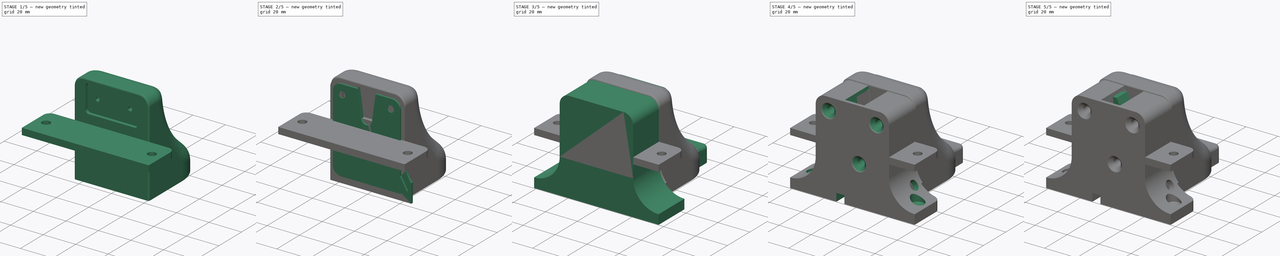
[diagram: build sequence overview — one tinted view per stage of 5, left to right]
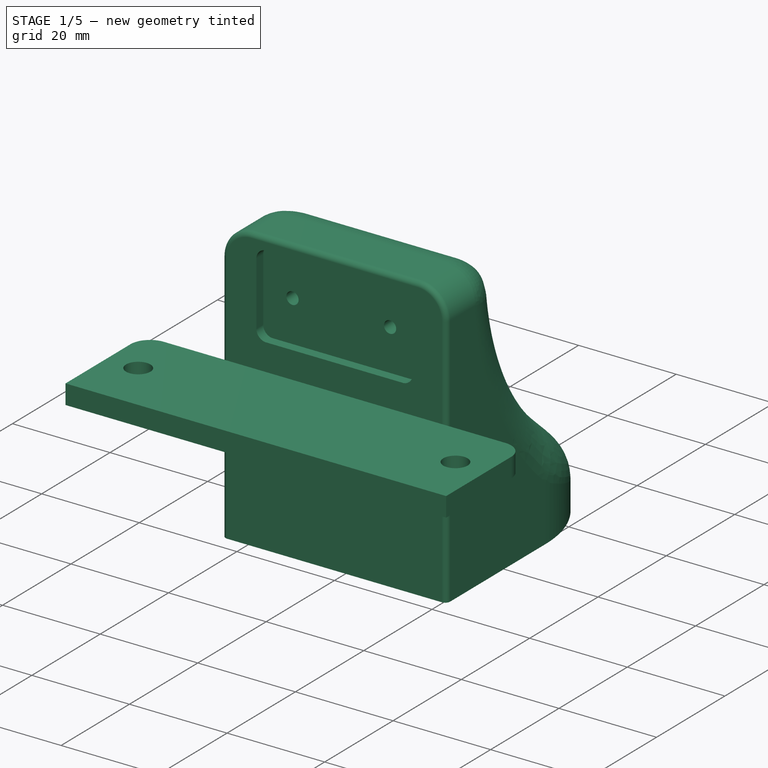
[diagram: stage 1 of 5 — iso view after this stage's code; geometry added in this stage tinted green]
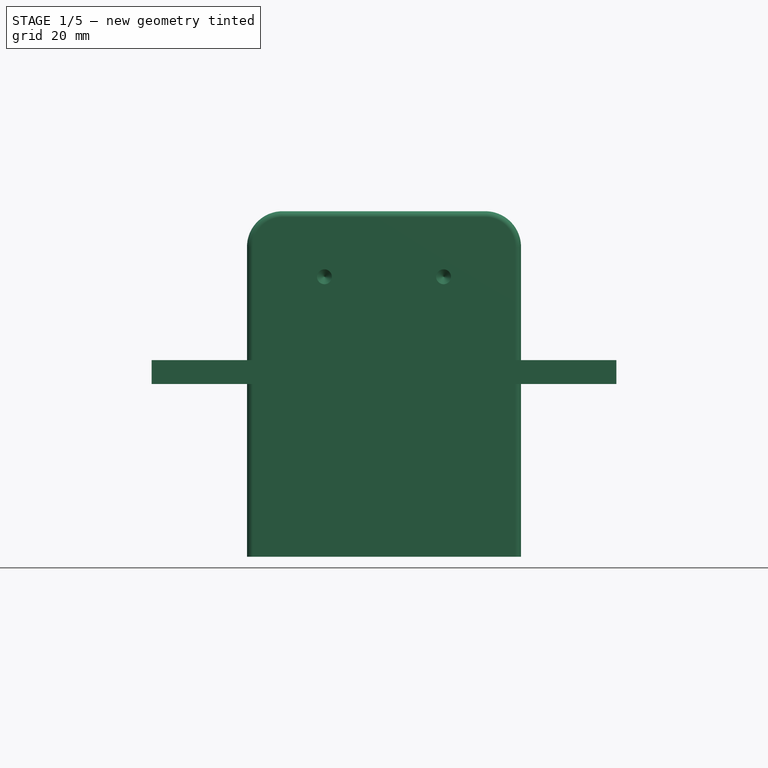
[diagram: stage 1 of 5 — front view after this stage's code; geometry added in this stage tinted green]
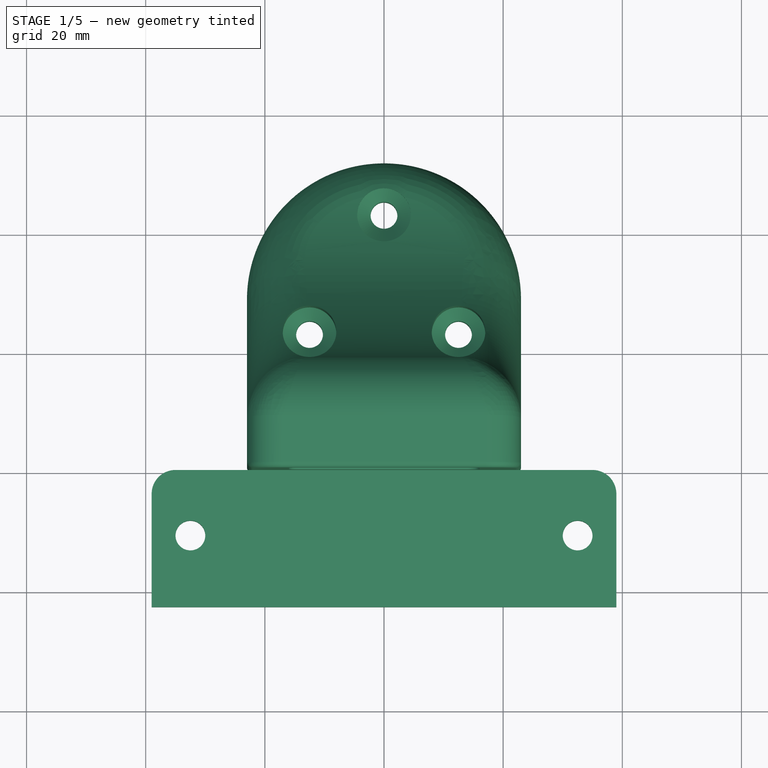
[diagram: stage 1 of 5 — top view after this stage's code; geometry added in this stage tinted green]
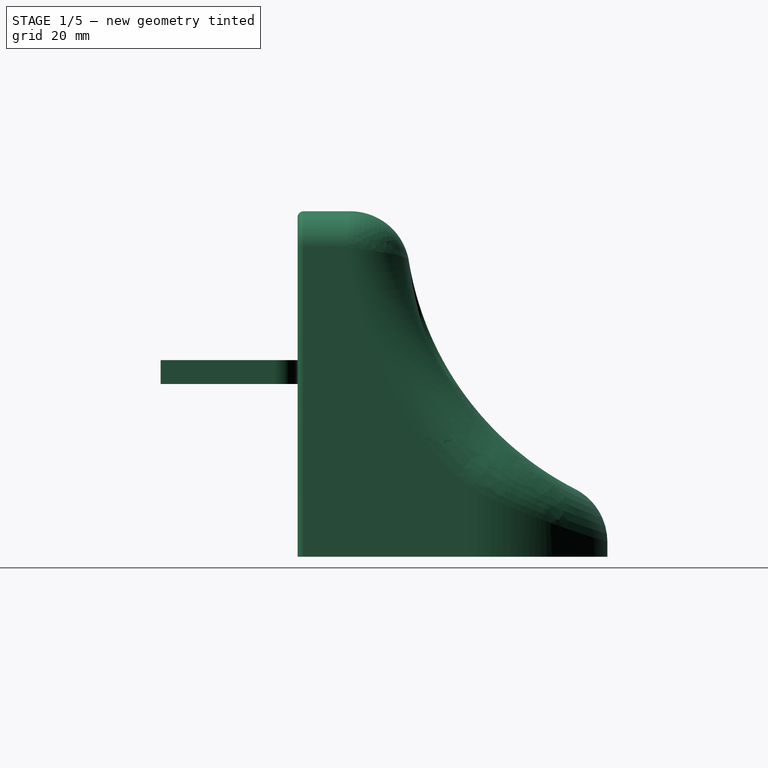
[diagram: stage 1 of 5 — right view after this stage's code; geometry added in this stage tinted green]
FCSTD DOCUMENT  (FreeCAD 1.0R39319 (Git))
Label: zamek_kachnik
License: All rights reserved
LicenseURL: https://en.wikipedia.org/wiki/All_rights_reserved
objects: Sketcher::SketchObject×36, PartDesign::Pocket×13, PartDesign::Pad×12, PartDesign::Fillet×10, PartDesign::Hole×9, PartDesign::Body×8, PartDesign::AdditivePipe×1
note: 215 computed .brp shape members not serialized (recipe doc carries the construction recipe); baked Part::Feature solids carry a one-line shape summary decoded from their .brp

FEATURE [PartDesign::Body] Body005  label="krytka"
  AllowCompound = false
  Group = -> [Sketch025,Pad008,Sketch026,Pad009,Sketch027,Pocket009,Sketch028,Hole006,Fillet007]
  Origin = -> Origin005
  Tip = -> Fillet007
FEATURE [Sketcher::SketchObject] Sketch029
  ArcFitTolerance = 1e-06
  AttachmentSupport = -> [XZ_Plane006]
  FullyConstrained = true
  MakeInternals = false
  MapMode = 5
  Placement = pos=(0,0,0) rot=(1,0,0;1.5708rad)
  sketch-geometry (8):
    g0: LineSegment StartX=-23 StartY=23 StartZ=0 EndX=-23 EndY=-29 EndZ=0
    g1: LineSegment StartX=-23 StartY=-29 StartZ=0 EndX=23 EndY=-29 EndZ=0
    g2: LineSegment StartX=23 StartY=-29 StartZ=0 EndX=23 EndY=23 EndZ=0
    g3: LineSegment StartX=17 StartY=29 StartZ=0 EndX=-17 EndY=29 EndZ=0
    g4: ArcOfCircle CenterX=-17 CenterY=23 CenterZ=0 NormalX=0 NormalY=0 NormalZ=1 AngleXU=0 Radius=6 StartAngle=1.5708 EndAngle=3.14159
    g5: GeomPoint [constr] X=-23 Y=29 Z=0
    g6: ArcOfCircle CenterX=17 CenterY=23 CenterZ=0 NormalX=0 NormalY=0 NormalZ=1 AngleXU=0 Radius=6 StartAngle=-1.07e-14 EndAngle=1.5708
    g7: GeomPoint [constr] X=23 Y=29 Z=0
  constraints (18):
    c: Coincident(g0,g1)
    c: Coincident(g1,g2)
    c: Vertical(g2)
    c: Horizontal(g1)
    c: Symmetric(g5,g7,g-2)
    c: Symmetric(g5,g0,g-1)
    c: DistanceX(g5,g7) = 46
    c: DistanceY(g0,g5) = 58
    c: PointOnObject(g5,g0)
    c: PointOnObject(g5,g3)
    c: Tangent(g0,g4) = -1.5708
    c: Tangent(g3,g4) = -1.5708
    c: PointOnObject(g7,g2)
    c: PointOnObject(g7,g3)
    c: Tangent(g2,g6) = -1.5708
    c: Tangent(g3,g6) = -1.5708
    c: Radius(g6) = 6
    c: Equal(g6,g4)
FEATURE [PartDesign::Pad] Pad010
  Direction = (0,-1,2e-16)
  Length = 52
  Length2 = 10
  Placement = pos=(0,0,0) rot=(1,0,0;1.5708rad)
  Profile = -> Sketch029
  ReferenceAxis = -> Sketch029 [N_Axis]
  Refine = true
  Reversed = true
  Suppressed = false
  Type = 0
FEATURE [Sketcher::SketchObject] Sketch030
  ArcFitTolerance = 1e-06
  AttachmentSupport = -> [Pad010]
  FullyConstrained = true
  MakeInternals = false
  MapMode = 5
  Placement = pos=(0,-2e-16,0) rot=(1,0,0;1.5708rad)
  sketch-geometry (12):
    g0: LineSegment StartX=-16 StartY=24.5 StartZ=0 EndX=-16 EndY=11.5 EndZ=0
    g1: LineSegment StartX=-14 StartY=9.5 StartZ=0 EndX=14 EndY=9.5 EndZ=0
    g2: LineSegment StartX=16 StartY=11.5 StartZ=0 EndX=16 EndY=24.5 EndZ=0
    g3: LineSegment StartX=14 StartY=26.5 StartZ=0 EndX=-14 EndY=26.5 EndZ=0
    g4: ArcOfCircle CenterX=14 CenterY=24.5 CenterZ=0 NormalX=0 NormalY=0 NormalZ=1 AngleXU=0 Radius=2 StartAngle=-9e-16 EndAngle=1.5708
    g5: GeomPoint [constr] X=16 Y=26.5 Z=0
    g6: ArcOfCircle CenterX=14 CenterY=11.5 CenterZ=0 NormalX=0 NormalY=0 NormalZ=1 AngleXU=0 Radius=2 StartAngle=4.71239 EndAngle=6.28319
    g7: GeomPoint [constr] X=16 Y=9.5 Z=0
    g8: ArcOfCircle CenterX=-14 CenterY=11.5 CenterZ=0 NormalX=0 NormalY=0 NormalZ=1 AngleXU=0 Radius=2 StartAngle=3.14159 EndAngle=4.71239
    g9: GeomPoint [constr] X=-16 Y=9.5 Z=0
    g10: ArcOfCircle CenterX=-14 CenterY=24.5 CenterZ=0 NormalX=0 NormalY=0 NormalZ=1 AngleXU=0 Radius=2 StartAngle=1.5708 EndAngle=3.14159
    g11: GeomPoint [constr] X=-16 Y=26.5 Z=0
  constraints (27):
    c: Vertical(g0)
    c: Vertical(g2)
    c: Horizontal(g1)
    c: Symmetric(g11,g5,g-2)
    c: DistanceX(g11,g5) = 32
    c: DistanceY(g7,g5) = 17
    c: DistanceY(g-1,g9) = 9.5
    c: PointOnObject(g5,g2)
    c: PointOnObject(g5,g3)
    c: Tangent(g2,g4) = -1.5708
    c: Tangent(g3,g4) = -1.5708
    c: PointOnObject(g7,g1)
    c: PointOnObject(g7,g2)
    c: Tangent(g1,g6) = -1.5708
    c: Tangent(g2,g6) = -1.5708
    c: PointOnObject(g9,g0)
    c: PointOnObject(g9,g1)
    c: Tangent(g0,g8) = -1.5708
    c: Tangent(g1,g8) = -1.5708
    c: PointOnObject(g11,g0)
    c: PointOnObject(g11,g3)
    c: Tangent(g0,g10) = -1.5708
    c: Tangent(g3,g10) = -1.5708
    c: Radius(g10) = 2
    c: Equal(g10,g8)
    c: Equal(g6,g8)
    c: Equal(g8,g4)
FEATURE [PartDesign::Pocket] Pocket010
  BaseFeature = -> Pad010
  Direction = (0,1,-2e-16)
  Length = 2
  Length2 = 5
  Placement = pos=(0,0,0) rot=(1,0,0;1.5708rad)
  Profile = -> Sketch030
  ReferenceAxis = -> Sketch030 [N_Axis]
  Refine = true
  Suppressed = false
  Type = 0
FEATURE [Sketcher::SketchObject] Sketch031
  ArcFitTolerance = 1e-06
  AttachmentSupport = -> [Pocket010]
  FullyConstrained = true
  MakeInternals = false
  MapMode = 5
  Placement = pos=(0,2,0) rot=(1,0,0;1.5708rad)
  sketch-geometry (2):
    g0: Circle CenterX=-10 CenterY=18 CenterZ=0 NormalX=0 NormalY=0 NormalZ=1 AngleXU=0 Radius=1.5
    g1: Circle CenterX=10 CenterY=18 CenterZ=0 NormalX=0 NormalY=0 NormalZ=1 AngleXU=0 Radius=1.5
  constraints (5):
    c: Symmetric(g1,g0,g-2)
    c: DistanceX(g0,g1) = 20
    c: DistanceY(g-1,g0) = 18
    c: Diameter(g0) = 3
    c: Equal(g0,g1)
FEATURE [Sketcher::SketchObject] Sketch032
  ArcFitTolerance = 1e-06
  AttachmentSupport = -> [Pocket010]
  ExternalGeometry = -> [Pocket010]
  FullyConstrained = true
  MakeInternals = false
  MapMode = 5
  Placement = pos=(-23,0,0) rot=(0.707107,0,-0.707107;3.14159rad)
  sketch-geometry (3):
    g0: ArcOfCircle CenterX=-29 CenterY=-70.3088 CenterZ=0 NormalX=0 NormalY=0 NormalZ=1 AngleXU=0 Radius=52.3088 StartAngle=0.357586 EndAngle=1.5708
    g1: LineSegment StartX=-29 StartY=-18 StartZ=0 EndX=-29 EndY=-52 EndZ=0
    g2: LineSegment StartX=-29 StartY=-52 StartZ=0 EndX=20 EndY=-52 EndZ=0
  constraints (9):
    c: PointOnObject(g0,g-4)
    c: PointOnObject(g0,g-3)
    c: Perpendicular(g0,g-4)
    c: DistanceY(g0,g-4) = 18
    c: DistanceX(g0,g-3) = 9
    c: Coincident(g1,g0)
    c: Coincident(g1,g-4)
    c: Coincident(g2,g1)
    c: Coincident(g2,g0)
FEATURE [PartDesign::Pocket] Pocket011
  BaseFeature = -> Pocket010
  Direction = (1,0,2e-16)
  Length = 5
  Length2 = 5
  Placement = pos=(0,0,0) rot=(1,0,0;1.5708rad)
  Profile = -> Sketch032
  ReferenceAxis = -> Sketch032 [N_Axis]
  Refine = true
  Suppressed = false
  Type = 1
FEATURE [Sketcher::SketchObject] Sketch033
  ArcFitTolerance = 1e-06
  AttachmentSupport = -> [Pocket011]
  ExternalGeometry = -> [Pocket011]
  FullyConstrained = true
  MakeInternals = false
  MapMode = 5
  Placement = pos=(0,-1.28e-14,-29) rot=(1,0,0;3.14159rad)
  sketch-geometry (4):
    g0: ArcOfCircle CenterX=-1.9353e-12 CenterY=-29 CenterZ=0 NormalX=0 NormalY=0 NormalZ=1 AngleXU=0 Radius=23 StartAngle=3.14159 EndAngle=6.28319
    g1: LineSegment StartX=-23 StartY=-29 StartZ=0 EndX=-23 EndY=-52 EndZ=0
    g2: LineSegment StartX=-23 StartY=-52 StartZ=0 EndX=23 EndY=-52 EndZ=0
    g3: LineSegment StartX=23 StartY=-52 StartZ=0 EndX=23 EndY=-29 EndZ=0
  constraints (9):
    c: Tangent(g0,g-3)
    c: Tangent(g0,g-5) = -1.5708
    c: Tangent(g0,g-4) = 1.5708
    c: Tangent(g1,g0) = -1.5708
    c: Coincident(g1,g-5)
    c: Coincident(g2,g1)
    c: Coincident(g2,g-4)
    c: Coincident(g3,g2)
    c: Coincident(g3,g0)
FEATURE [PartDesign::Pocket] Pocket012
  BaseFeature = -> Pocket011
  Direction = (0,0,1)
  Length = 5
  Length2 = 5
  Placement = pos=(0,0,0) rot=(1,0,0;1.5708rad)
  Profile = -> Sketch033
  ReferenceAxis = -> Sketch033 [N_Axis]
  Refine = true
  Suppressed = false
  Type = 1
FEATURE [PartDesign::Fillet] Fillet008
  Base = -> Pocket012 [Face4]
  BaseFeature = -> Pocket012
  Placement = pos=(0,0,0) rot=(1,0,0;1.5708rad)
  Radius = 10
  Refine = true
  SupportTransform = false
  Suppressed = false
  UseAllEdges = false
FEATURE [Sketcher::SketchObject] Sketch034
  ArcFitTolerance = 1e-06
  AttachmentSupport = -> [Fillet008]
  ExternalGeometry = -> [Fillet008]
  FullyConstrained = true
  MakeInternals = false
  MapMode = 5
  Placement = pos=(9e-15,1.28e-14,29) rot=(0,0,1;3.14159rad)
  sketch-geometry (3):
    g0: Circle CenterX=-12.5 CenterY=-23.1781 CenterZ=0 NormalX=0 NormalY=0 NormalZ=1 AngleXU=0 Radius=4.5
    g1: Circle CenterX=12.5 CenterY=-23.1781 CenterZ=0 NormalX=0 NormalY=0 NormalZ=1 AngleXU=0 Radius=4.5
    g2: Circle CenterX=0 CenterY=-43.1781 CenterZ=0 NormalX=0 NormalY=0 NormalZ=1 AngleXU=0 Radius=4.5
  constraints (8):
    c: PointOnObject(g2,g-2)
    c: Diameter(g2) = 9
    c: Equal(g2,g1)
    c: Equal(g1,g0)
    c: Tangent(g0,g-3)
    c: Symmetric(g0,g1,g-2)
    c: DistanceX(g0,g1) = 25
    c: DistanceY(g2,g0) = 20
FEATURE [PartDesign::Hole] Hole007
  BaseFeature = -> Fillet008
  CustomThreadClearance = 0
  Depth = 182.74
  DepthType = 1
  Diameter = 4.5
  DrillForDepth = false
  DrillPoint = 1
  DrillPointAngle = 118
  HoleCutCountersinkAngle = 90
  HoleCutCustomValues = false
  HoleCutDepth = 47.5
  HoleCutDiameter = 9
  HoleCutType = 3
  ModelThread = false
  Placement = pos=(0,0,0) rot=(1,0,0;1.5708rad)
  Profile = -> Sketch034
  Refine = true
  Suppressed = false
  Tapered = false
  TaperedAngle = 90
  ThreadClass = 0
  ThreadDepth = 182.74
  ThreadDepthType = 0
  ThreadDirection = 0
  ThreadFit = 0
  ThreadSize = 0
  ThreadType = 0
  Threaded = false
  UseCustomThreadClearance = false
FEATURE [PartDesign::Fillet] Fillet009
  Base = -> Hole007 [Edge5,Edge23,Edge24,Edge26,Edge25]
  BaseFeature = -> Hole007
  Placement = pos=(0,0,0) rot=(1,0,0;1.5708rad)
  Radius = 1
  Refine = true
  SupportTransform = false
  Suppressed = false
  UseAllEdges = false
FEATURE [PartDesign::Hole] Hole008
  BaseFeature = -> Fillet009
  CustomThreadClearance = 0
  Depth = 15
  DepthType = 0
  Diameter = 2.5
  DrillForDepth = false
  DrillPoint = 1
  DrillPointAngle = 118
  HoleCutCountersinkAngle = 90
  HoleCutCustomValues = false
  HoleCutDepth = 0
  HoleCutDiameter = 6.1
  HoleCutType = 0
  ModelThread = false
  Placement = pos=(0,0,0) rot=(1,0,0;1.5708rad)
  Profile = -> Sketch031
  Refine = true
  Suppressed = false
  Tapered = false
  TaperedAngle = 90
  ThreadClass = 0
  ThreadDepth = 15
  ThreadDepthType = 0
  ThreadDirection = 0
  ThreadFit = 0
  ThreadSize = 0
  ThreadType = 0
  Threaded = false
  UseCustomThreadClearance = false
FEATURE [PartDesign::Body] Body006  label="drzak_zapadky"
  AllowCompound = false
  Group = -> [Sketch029,Pad010,Sketch030,Pocket010,Sketch031,Sketch032,Pocket011,Sketch033,Pocket012,Fillet008,Sketch034,Hole007,Fillet009,Hole008]
  Origin = -> Origin006
  Placement = pos=(0,3,-1) rot=(0,0,1;0rad)
  Tip = -> Hole008
FEATURE [Sketcher::SketchObject] Sketch035
  ArcFitTolerance = 1e-06
  AttachmentSupport = -> [XY_Plane007]
  FullyConstrained = true
  MakeInternals = false
  MapMode = 5
  sketch-geometry (10):
    g0: LineSegment StartX=-39 StartY=-4 StartZ=0 EndX=-39 EndY=-23 EndZ=0
    g1: LineSegment StartX=-39 StartY=-23 StartZ=0 EndX=39 EndY=-23 EndZ=0
    g2: LineSegment StartX=39 StartY=-23 StartZ=0 EndX=39 EndY=-4 EndZ=0
    g3: LineSegment StartX=35 StartY=0 StartZ=0 EndX=-35 EndY=-1.421e-13 EndZ=0
    g4: ArcOfCircle CenterX=-35 CenterY=-4 CenterZ=0 NormalX=0 NormalY=0 NormalZ=1 AngleXU=0 Radius=4 StartAngle=1.5708 EndAngle=3.14159
    g5: GeomPoint [constr] X=-39 Y=0 Z=0
    g6: ArcOfCircle CenterX=35 CenterY=-4 CenterZ=0 NormalX=0 NormalY=0 NormalZ=1 AngleXU=0 Radius=4 StartAngle=1.2e-15 EndAngle=1.5708
    g7: GeomPoint [constr] X=39 Y=0 Z=0
    g8: Circle CenterX=-32.5 CenterY=-11 CenterZ=0 NormalX=0 NormalY=0 NormalZ=1 AngleXU=0 Radius=2.5
    g9: Circle CenterX=32.5 CenterY=-11 CenterZ=0 NormalX=0 NormalY=0 NormalZ=1 AngleXU=0 Radius=2.5
  constraints (24):
    c: Coincident(g0,g1)
    c: Coincident(g1,g2)
    c: Vertical(g0)
    c: Vertical(g2)
    c: Horizontal(g1)
    c: PointOnObject(g5,g-1)
    c: Symmetric(g5,g7,g-2)
    c: DistanceY(g0,g5) = 23
    c: DistanceX(g1,g1) = 78
    c: PointOnObject(g5,g0)
    c: PointOnObject(g5,g3)
    c: Tangent(g0,g4) = -1.5708
    c: Tangent(g3,g4) = -1.5708
    c: PointOnObject(g7,g2)
    c: PointOnObject(g7,g3)
    c: Tangent(g2,g6) = -1.5708
    c: Tangent(g3,g6) = -1.5708
    c: Radius(g4) = 4
    c: Equal(g4,g6)
    c: DistanceY(g8,g-1) = 11
    c: Symmetric(g8,g9,g-2)
    c: DistanceX(g8,g9) = 65
    c: Diameter(g9) = 5
    c: Equal(g9,g8)
FEATURE [PartDesign::Pad] Pad011
  Direction = (0,0,1)
  Length = 4
  Length2 = 10
  Profile = -> Sketch035
  ReferenceAxis = -> Sketch035 [N_Axis]
  Refine = true
  Suppressed = false
  Type = 0
FEATURE [PartDesign::Body] Body007  label="podlozka"
  AllowCompound = false
  Group = -> [Sketch035,Pad011]
  Origin = -> Origin007
  Placement = pos=(0,0,-34) rot=(0,0,1;0rad)
  Tip = -> Pad011
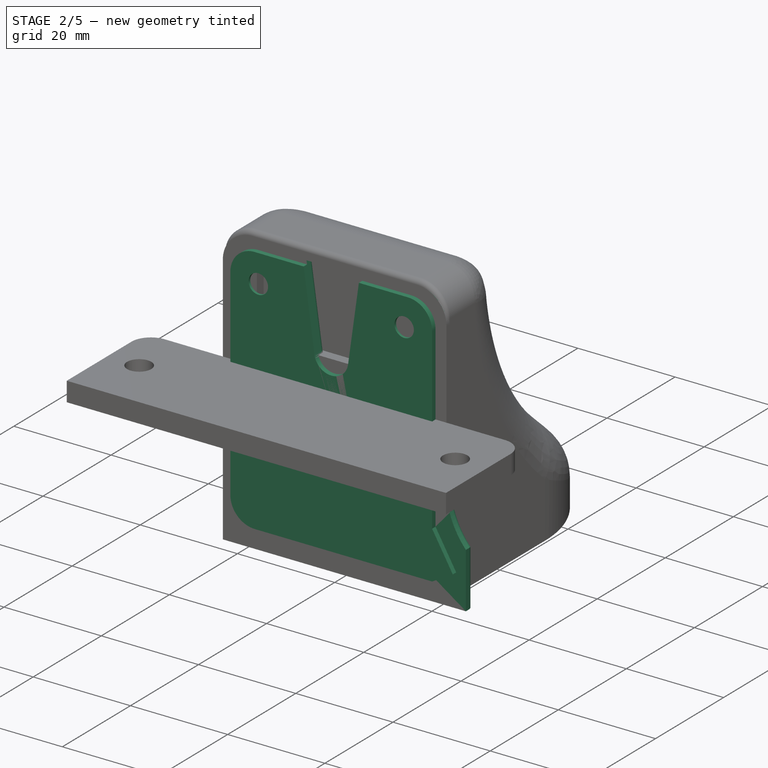
[diagram: stage 2 of 5 — iso view after this stage's code; geometry added in this stage tinted green]
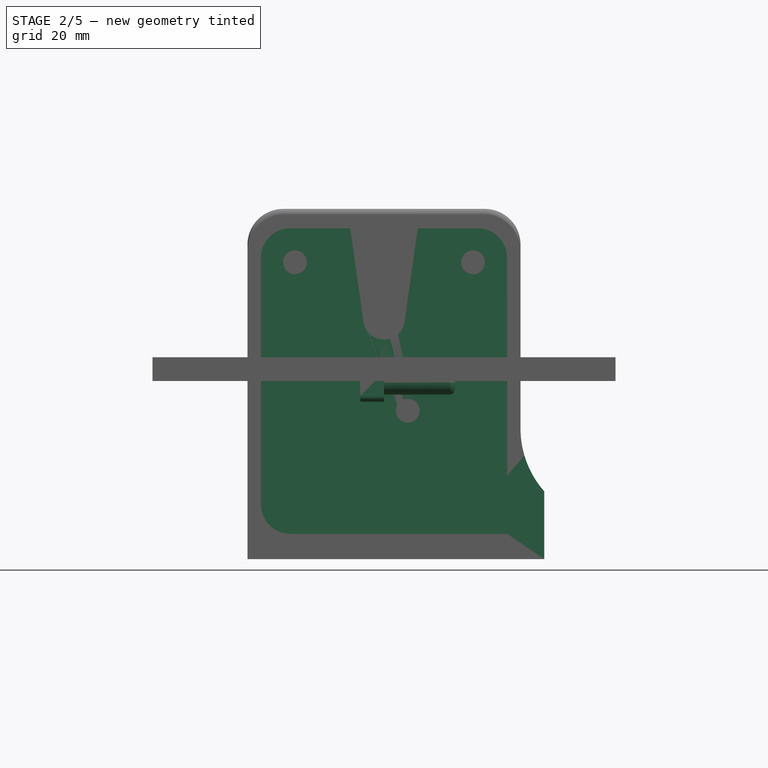
[diagram: stage 2 of 5 — front view after this stage's code; geometry added in this stage tinted green]
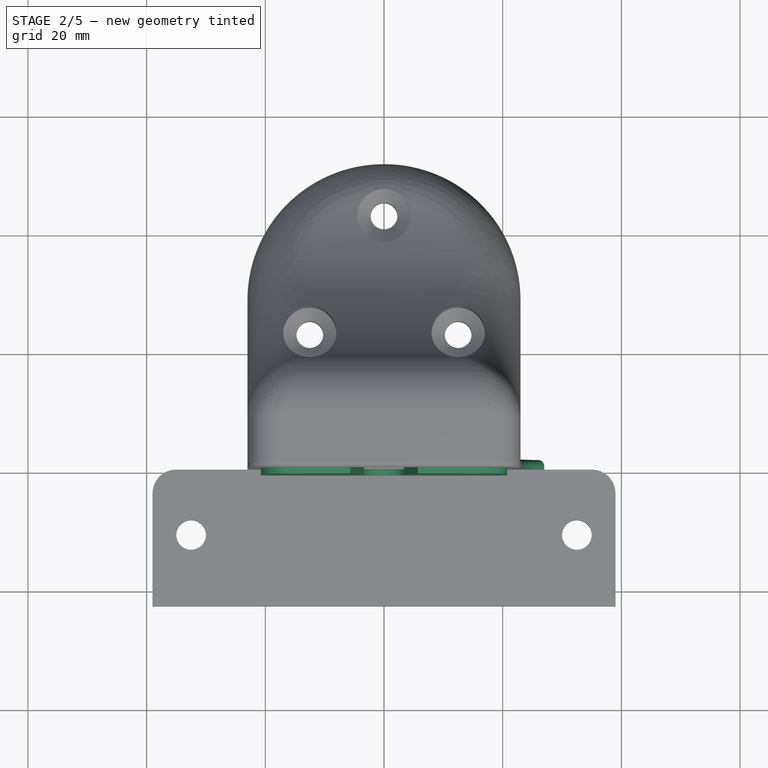
[diagram: stage 2 of 5 — top view after this stage's code; geometry added in this stage tinted green]
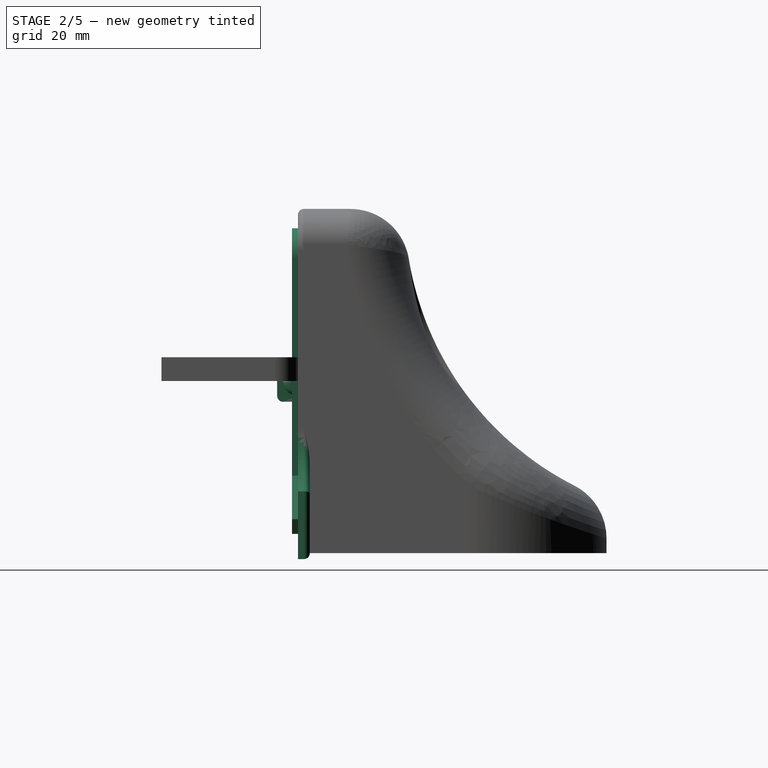
[diagram: stage 2 of 5 — right view after this stage's code; geometry added in this stage tinted green]
FEATURE [PartDesign::Body] Body003  label="drzak_zapadky_maly"
  AllowCompound = false
  Group = -> [Sketch019,Pad005,Sketch020,Pocket008,Sketch021,Hole004,Fillet002,Sketch022,Fillet003,Fillet004,Hole005]
  Origin = -> Origin003
  Tip = -> Hole005
FEATURE [Sketcher::SketchObject] Sketch023
  ArcFitTolerance = 1e-06
  AttachmentSupport = -> [YZ_Plane004]
  FullyConstrained = true
  MakeInternals = false
  MapMode = 5
  Placement = pos=(0,0,0) rot=(0.57735,0.57735,0.57735;2.0944rad)
  sketch-geometry (1):
    g0: Circle CenterX=0 CenterY=0 CenterZ=0 NormalX=0 NormalY=0 NormalZ=1 AngleXU=0 Radius=2.5
  constraints (2):
    c: Coincident(g0,g-1)
    c: Diameter(g0) = 5
FEATURE [PartDesign::Pad] Pad006
  Direction = (1,0,0)
  Length = 12
  Length2 = 10
  Placement = pos=(0,0,0) rot=(1,1,1;2.0944rad)
  Profile = -> Sketch023
  ReferenceAxis = -> Sketch023 [N_Axis]
  Refine = true
  Suppressed = false
  Type = 0
FEATURE [Sketcher::SketchObject] Sketch024
  ArcFitTolerance = 1e-06
  AttachmentSupport = -> [Pad006]
  ExternalGeometry = -> [Pad006]
  FullyConstrained = true
  MakeInternals = false
  MapMode = 5
  Placement = pos=(0,0,0) rot=(0.57735,0.57735,-0.57735;4.18879rad)
  sketch-geometry (4):
    g0: LineSegment StartX=-3.5 StartY=3.5 StartZ=0 EndX=-3.5 EndY=-2.5 EndZ=0
    g1: LineSegment StartX=-3.5 StartY=-2.5 StartZ=0 EndX=3.5 EndY=-2.5 EndZ=0
    g2: LineSegment StartX=3.5 StartY=-2.5 StartZ=0 EndX=3.5 EndY=3.5 EndZ=0
    g3: LineSegment StartX=3.5 StartY=3.5 StartZ=0 EndX=-3.5 EndY=3.5 EndZ=0
  constraints (11):
    c: Coincident(g0,g1)
    c: Coincident(g1,g2)
    c: Coincident(g2,g3)
    c: Coincident(g3,g0)
    c: Vertical(g0)
    c: Vertical(g2)
    c: Horizontal(g1)
    c: DistanceX(g3,g3) = 7
    c: Symmetric(g0,g2,g-2)
    c: DistanceY(g0,g0) = 6
    c: Tangent(g1,g-3)
FEATURE [PartDesign::Pad] Pad007
  BaseFeature = -> Pad006
  Direction = (-1,0,0)
  Length = 4
  Length2 = 10
  Placement = pos=(0,0,0) rot=(1,1,1;2.0944rad)
  Profile = -> Sketch024
  ReferenceAxis = -> Sketch024 [N_Axis]
  Refine = true
  Suppressed = false
  Type = 0
FEATURE [PartDesign::Fillet] Fillet005
  Base = -> Pad007 [Edge13,Edge15,Edge10,Edge11]
  BaseFeature = -> Pad007
  Placement = pos=(0,0,0) rot=(1,1,1;2.0944rad)
  Radius = 1
  Refine = true
  SupportTransform = false
  Suppressed = false
  UseAllEdges = false
FEATURE [PartDesign::Fillet] Fillet006
  Base = -> Fillet005 [Face12]
  BaseFeature = -> Fillet005
  Placement = pos=(0,0,0) rot=(1,1,1;2.0944rad)
  Radius = 1
  Refine = true
  SupportTransform = false
  Suppressed = false
  UseAllEdges = false
FEATURE [PartDesign::Body] Body004  label="cudlik"
  AllowCompound = false
  Group = -> [Sketch023,Pad006,Sketch024,Pad007,Fillet005,Fillet006]
  Origin = -> Origin004
  Placement = pos=(23.2391,-5,-19.2513) rot=(0,1,0;5.75959rad)
  Tip = -> Fillet006
FEATURE [Sketcher::SketchObject] Sketch025
  ArcFitTolerance = 1e-06
  AttachmentSupport = -> [XZ_Plane005]
  FullyConstrained = true
  MakeInternals = false
  MapMode = 5
  Placement = pos=(0,0,0) rot=(1,0,0;1.5708rad)
  sketch-geometry (10):
    g0: LineSegment StartX=17 StartY=28 StartZ=0 EndX=-17 EndY=28 EndZ=0
    g1: LineSegment StartX=23 StartY=22 StartZ=0 EndX=23 EndY=-8 EndZ=0
    g2: LineSegment StartX=-23 StartY=22 StartZ=0 EndX=-23 EndY=-30 EndZ=0
    g3: LineSegment StartX=-23 StartY=-30 StartZ=0 EndX=27 EndY=-30 EndZ=0
    g4: LineSegment StartX=27 StartY=-30 StartZ=0 EndX=27 EndY=-18.583 EndZ=0
    g5: ArcOfCircle CenterX=39 CenterY=-8 CenterZ=0 NormalX=0 NormalY=0 NormalZ=1 AngleXU=0 Radius=16 StartAngle=3.14159 EndAngle=3.86433
    g6: ArcOfCircle CenterX=-17 CenterY=22 CenterZ=0 NormalX=0 NormalY=0 NormalZ=1 AngleXU=0 Radius=6 StartAngle=1.5708 EndAngle=3.14159
    g7: GeomPoint [constr] X=-23 Y=28 Z=0
    g8: ArcOfCircle CenterX=17 CenterY=22 CenterZ=0 NormalX=0 NormalY=0 NormalZ=1 AngleXU=0 Radius=6 StartAngle=-8.9244e-12 EndAngle=1.5708
    g9: GeomPoint [constr] X=23 Y=28 Z=0
  constraints (25):
    c: Vertical(g1)
    c: Vertical(g2)
    c: Coincident(g3,g2)
    c: Horizontal(g3)
    c: Coincident(g4,g3)
    c: Vertical(g4)
    c: Coincident(g5,g4)
    c: Tangent(g5,g1) = -1.5708
    c: Symmetric(g9,g7,g-2)
    c: DistanceX(g7,g9) = 46
    c: DistanceY(g2,g7) = 58
    c: DistanceY(g2,g-1) = 30
    c: DistanceX(g3,g3) = 50
    c: Radius(g5) = 16
    c: DistanceY(g1,g9) = 36
    c: PointOnObject(g7,g0)
    c: PointOnObject(g7,g2)
    c: Tangent(g0,g6) = -1.5708
    c: Tangent(g2,g6) = -1.5708
    c: PointOnObject(g9,g0)
    c: PointOnObject(g9,g1)
    c: Tangent(g0,g8) = -1.5708
    c: Tangent(g1,g8) = 1.5708
    c: Equal(g6,g8)
    c: Radius(g6) = 6
FEATURE [PartDesign::Pad] Pad008
  Direction = (0,-1,2e-16)
  Length = 2
  Length2 = 10
  Placement = pos=(0,0,0) rot=(1,0,0;1.5708rad)
  Profile = -> Sketch025
  ReferenceAxis = -> Sketch025 [N_Axis]
  Refine = true
  Reversed = true
  Suppressed = false
  Type = 0
FEATURE [Sketcher::SketchObject] Sketch026
  ArcFitTolerance = 1e-06
  AttachmentSupport = -> [Pad008]
  FullyConstrained = true
  MakeInternals = false
  MapMode = 5
  Placement = pos=(0,-5e-16,0) rot=(1,0,0;1.5708rad)
  sketch-geometry (12):
    g0: LineSegment StartX=-20.75 StartY=-20.75 StartZ=0 EndX=-20.75 EndY=20.75 EndZ=0
    g1: LineSegment StartX=-15.75 StartY=25.75 StartZ=0 EndX=15.75 EndY=25.75 EndZ=0
    g2: LineSegment StartX=20.75 StartY=20.75 StartZ=0 EndX=20.75 EndY=-15.935 EndZ=0
    g3: LineSegment StartX=20.75 StartY=-15.935 StartZ=0 EndX=25 EndY=-23.2963 EndZ=0
    g4: LineSegment StartX=25 StartY=-23.2963 StartZ=0 EndX=20.75 EndY=-25.75 EndZ=0
    g5: LineSegment StartX=20.75 StartY=-25.75 StartZ=0 EndX=-15.75 EndY=-25.75 EndZ=0
    g6: ArcOfCircle CenterX=-15.75 CenterY=-20.75 CenterZ=0 NormalX=0 NormalY=0 NormalZ=1 AngleXU=0 Radius=5 StartAngle=3.14159 EndAngle=4.71239
    g7: GeomPoint [constr] X=-20.75 Y=-25.75 Z=0
    g8: ArcOfCircle CenterX=-15.75 CenterY=20.75 CenterZ=0 NormalX=0 NormalY=0 NormalZ=1 AngleXU=0 Radius=5 StartAngle=1.5708 EndAngle=3.14159
    g9: GeomPoint [constr] X=-20.75 Y=25.75 Z=0
    g10: ArcOfCircle CenterX=15.75 CenterY=20.75 CenterZ=0 NormalX=0 NormalY=0 NormalZ=1 AngleXU=0 Radius=5 StartAngle=0 EndAngle=1.5708
    g11: GeomPoint [constr] X=20.75 Y=25.75 Z=0
  constraints (28):
    c: Vertical(g0)
    c: Horizontal(g1)
    c: Vertical(g2)
    c: Coincident(g3,g2)
    c: Coincident(g4,g3)
    c: Coincident(g5,g4)
    c: Symmetric(g4,g11,g-1)
    c: Symmetric(g7,g4,g-2)
    c: DistanceX(g7,g5) = 41.5
    c: DistanceY(g7,g9) = 51.5
    c: Distance(g3) = 8.5
    c: Perpendicular(g3,g4)
    c: Angle(g3,g2) = 2.61799
    c: PointOnObject(g7,g0)
    c: PointOnObject(g7,g5)
    c: Tangent(g0,g6) = 1.5708
    c: Tangent(g5,g6) = 1.5708
    c: PointOnObject(g9,g0)
    c: PointOnObject(g9,g1)
    c: Tangent(g0,g8) = 1.5708
    c: Tangent(g1,g8) = 1.5708
    c: PointOnObject(g11,g1)
    c: PointOnObject(g11,g2)
    c: Tangent(g1,g10) = 1.5708
    c: Tangent(g2,g10) = 1.5708
    c: Radius(g10) = 5
    c: Equal(g10,g8)
    c: Equal(g8,g6)
FEATURE [PartDesign::Pad] Pad009
  BaseFeature = -> Pad008
  Direction = (0,-1,2e-16)
  Length = 1
  Length2 = 10
  Placement = pos=(0,0,0) rot=(1,0,0;1.5708rad)
  Profile = -> Sketch026
  ReferenceAxis = -> Sketch026 [N_Axis]
  Refine = true
  Suppressed = false
  Type = 0
FEATURE [Sketcher::SketchObject] Sketch027
  ArcFitTolerance = 1e-06
  AttachmentSupport = -> [Pad009]
  ExternalGeometry = -> [Pad009]
  FullyConstrained = true
  MakeInternals = false
  MapMode = 5
  Placement = pos=(0,2,0) rot=(-1,0,0;1.5708rad)
  sketch-geometry (4):
    g0: LineSegment StartX=-6 StartY=-28 StartZ=0 EndX=6 EndY=-28 EndZ=0
    g1: LineSegment StartX=-6 StartY=-28 StartZ=0 EndX=-3.46582 EndY=-10 EndZ=0
    g2: LineSegment StartX=6 StartY=-28 StartZ=0 EndX=3.46582 EndY=-10 EndZ=0
    g3: ArcOfCircle CenterX=-1.1e-15 CenterY=-10.4879 CenterZ=0 NormalX=0 NormalY=0 NormalZ=1 AngleXU=0 Radius=3.5 StartAngle=0.139868 EndAngle=3.00172
  constraints (10):
    c: PointOnObject(g0,g-3)
    c: Coincident(g1,g0)
    c: Coincident(g2,g0)
    c: Coincident(g3,g2)
    c: Symmetric(g0,g0,g-2)
    c: Symmetric(g1,g2,g-2)
    c: Radius(g3) = 3.5
    c: DistanceX(g0,g0) = 12
    c: Tangent(g3,g1) = 1.5708
    c: DistanceY(g0,g1) = 18
FEATURE [PartDesign::Pocket] Pocket009
  BaseFeature = -> Pad009
  Direction = (0,-1,-2e-16)
  Length = 5
  Length2 = 5
  Placement = pos=(0,0,0) rot=(1,0,0;1.5708rad)
  Profile = -> Sketch027
  ReferenceAxis = -> Sketch027 [N_Axis]
  Refine = true
  Suppressed = false
  Type = 1
FEATURE [Sketcher::SketchObject] Sketch028
  ArcFitTolerance = 1e-06
  AttachmentSupport = -> [Pocket009]
  FullyConstrained = true
  MakeInternals = false
  MapMode = 5
  Placement = pos=(0,2,0) rot=(-1,0,0;1.5708rad)
  sketch-geometry (3):
    g0: Circle CenterX=-15 CenterY=-20 CenterZ=0 NormalX=0 NormalY=0 NormalZ=1 AngleXU=0 Radius=2
    g1: Circle CenterX=15 CenterY=-20 CenterZ=0 NormalX=0 NormalY=0 NormalZ=1 AngleXU=0 Radius=2
    g2: Circle CenterX=4 CenterY=5 CenterZ=0 NormalX=0 NormalY=0 NormalZ=1 AngleXU=0 Radius=2
  constraints (8):
    c: Symmetric(g0,g1,g-2)
    c: DistanceY(g0,g2) = 25
    c: DistanceX(g0,g1) = 30
    c: Equal(g0,g1)
    c: Equal(g2,g0)
    c: Diameter(g2) = 4
    c: DistanceY(g0,g-1) = 20
    c: DistanceX(g2,g1) = 11
FEATURE [PartDesign::Hole] Hole006
  BaseFeature = -> Pocket009
  CustomThreadClearance = 0
  Depth = 25
  DepthType = 0
  Diameter = 4
  DrillForDepth = false
  DrillPoint = 1
  DrillPointAngle = 118
  HoleCutCountersinkAngle = 90
  HoleCutCustomValues = false
  HoleCutDepth = 0
  HoleCutDiameter = 9
  HoleCutType = 2
  ModelThread = false
  Placement = pos=(0,0,0) rot=(1,0,0;1.5708rad)
  Profile = -> Sketch028
  Refine = true
  Suppressed = false
  Tapered = false
  TaperedAngle = 90
  ThreadClass = 0
  ThreadDepth = 25
  ThreadDepthType = 0
  ThreadDirection = 0
  ThreadFit = 0
  ThreadSize = 0
  ThreadType = 0
  Threaded = false
  UseCustomThreadClearance = false
FEATURE [PartDesign::Fillet] Fillet007
  Base = -> Hole006 [Edge7,Edge29,Edge31,Edge33,Edge35,Edge37,Edge36,Edge34,Edge32,Edge30,Edge10,Edge4]
  BaseFeature = -> Hole006
  Placement = pos=(0,0,0) rot=(1,0,0;1.5708rad)
  Radius = 1
  Refine = true
  SupportTransform = false
  Suppressed = false
  UseAllEdges = false
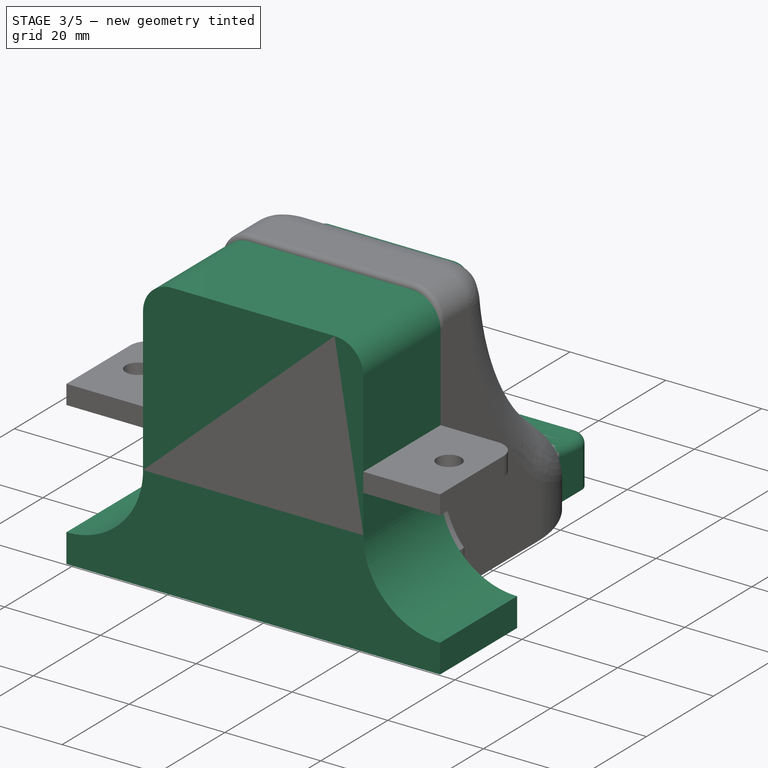
[diagram: stage 3 of 5 — iso view after this stage's code; geometry added in this stage tinted green]
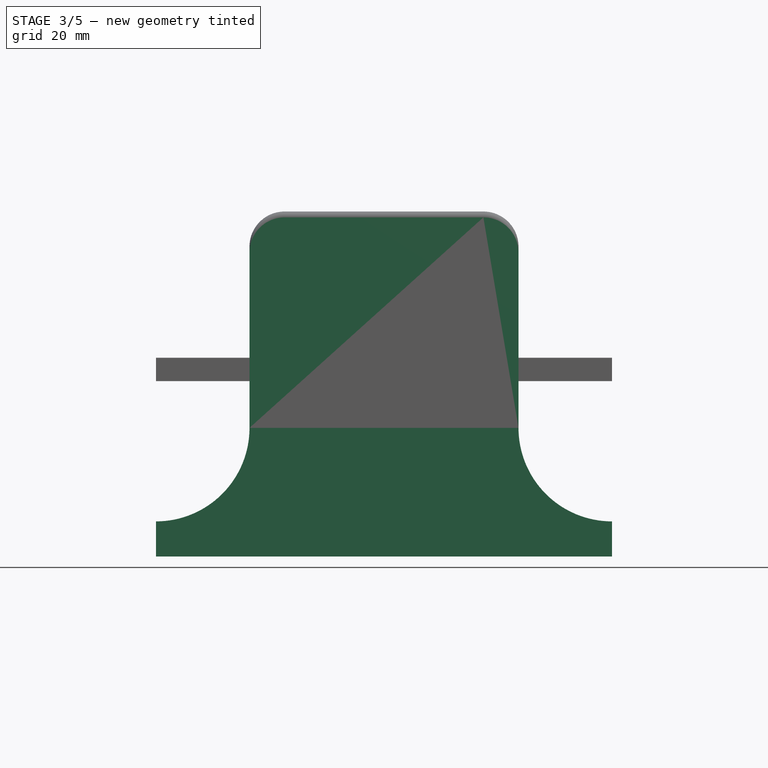
[diagram: stage 3 of 5 — front view after this stage's code; geometry added in this stage tinted green]
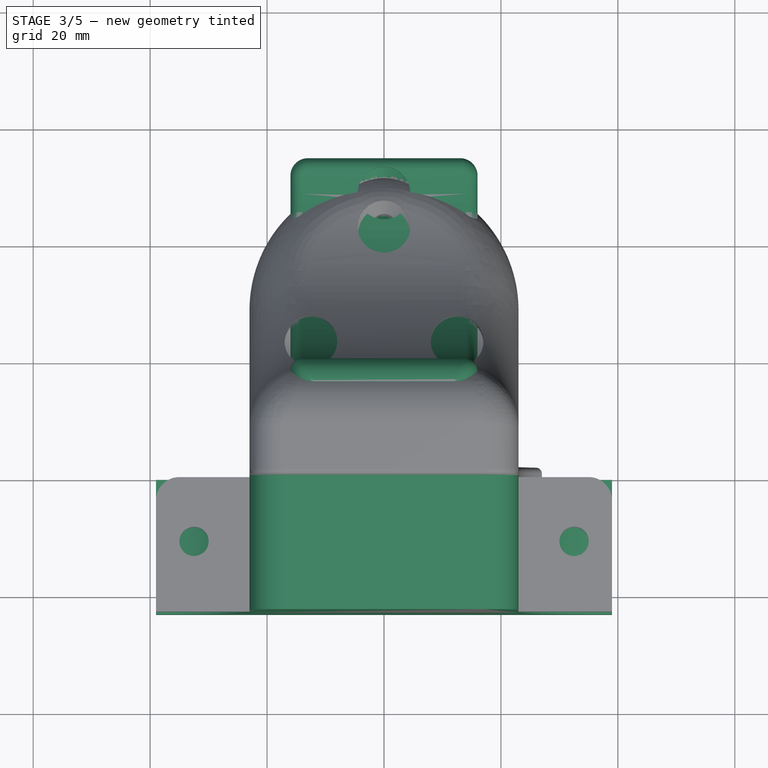
[diagram: stage 3 of 5 — top view after this stage's code; geometry added in this stage tinted green]
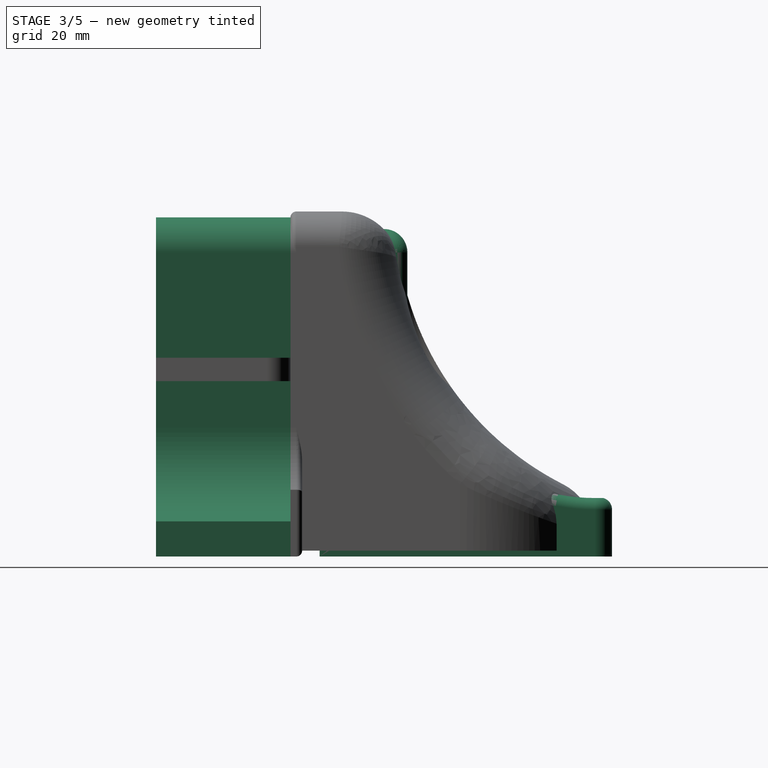
[diagram: stage 3 of 5 — right view after this stage's code; geometry added in this stage tinted green]
FEATURE [PartDesign::Body] Body001  label="zapadka"
  AllowCompound = false
  Group = -> [Sketch006,Pad003,Sketch007,Hole001,Sketch008,Sketch009,AdditivePipe]
  Origin = -> Origin001
  Placement = pos=(0,5,17) rot=(0,0,1;0rad)
  Tip = -> AdditivePipe
FEATURE [Sketcher::SketchObject] Sketch010
  ArcFitTolerance = 1e-06
  AttachmentSupport = -> [XZ_Plane002]
  FullyConstrained = true
  MakeInternals = false
  MapMode = 5
  Placement = pos=(0,0,0) rot=(1,0,0;1.5708rad)
  sketch-geometry (12):
    g0: LineSegment StartX=-39 StartY=-30 StartZ=0 EndX=39 EndY=-30 EndZ=0
    g1: LineSegment StartX=17 StartY=28 StartZ=0 EndX=-17 EndY=28 EndZ=0
    g2: LineSegment StartX=-23 StartY=22 StartZ=0 EndX=-23 EndY=-8 EndZ=0
    g3: LineSegment StartX=23 StartY=22 StartZ=0 EndX=23 EndY=-8 EndZ=0
    g4: ArcOfCircle CenterX=-39 CenterY=-8 CenterZ=0 NormalX=0 NormalY=0 NormalZ=1 AngleXU=0 Radius=16 StartAngle=4.71239 EndAngle=6.28319
    g5: ArcOfCircle CenterX=39 CenterY=-8 CenterZ=0 NormalX=0 NormalY=0 NormalZ=1 AngleXU=0 Radius=16 StartAngle=3.14159 EndAngle=4.71239
    g6: LineSegment StartX=39 StartY=-24 StartZ=0 EndX=39 EndY=-30 EndZ=0
    g7: LineSegment StartX=-39 StartY=-24 StartZ=0 EndX=-39 EndY=-30 EndZ=0
    g8: ArcOfCircle CenterX=-17 CenterY=22 CenterZ=0 NormalX=0 NormalY=0 NormalZ=1 AngleXU=0 Radius=6 StartAngle=1.5708 EndAngle=3.14159
    g9: GeomPoint [constr] X=-23 Y=28 Z=0
    g10: ArcOfCircle CenterX=17 CenterY=22 CenterZ=0 NormalX=0 NormalY=0 NormalZ=1 AngleXU=0 Radius=6 StartAngle=0 EndAngle=1.5708
    g11: GeomPoint [constr] X=23 Y=28 Z=0
  constraints (30):
    c: DistanceY(g0,g-1) = 30
    c: DistanceY(g-1,g9) = 28
    c: Vertical(g2)
    c: Symmetric(g9,g11,g-2)
    c: DistanceX(g9,g11) = 46
    c: Vertical(g3)
    c: Horizontal(g2,g3)
    c: Tangent(g4,g2) = 1.5708
    c: Tangent(g5,g3) = -1.5708
    c: Coincident(g6,g5)
    c: Coincident(g6,g0)
    c: Coincident(g7,g4)
    c: Coincident(g7,g0)
    c: Vertical(g7)
    c: Perpendicular(g5,g6)
    c: Perpendicular(g4,g7)
    c: Symmetric(g0,g0,g-2)
    c: Perpendicular(g6,g0)
    c: DistanceY(g6,g6) = 6
    c: DistanceX(g3,g5) = 16
    c: PointOnObject(g9,g1)
    c: PointOnObject(g9,g2)
    c: Tangent(g1,g8) = -1.5708
    c: Tangent(g2,g8) = -1.5708
    c: PointOnObject(g11,g1)
    c: PointOnObject(g11,g3)
    c: Tangent(g1,g10) = -1.5708
    c: Tangent(g3,g10) = 1.5708
    c: Equal(g8,g10)
    c: Radius(g8) = 6
FEATURE [PartDesign::Pad] Pad004
  Direction = (0,-1,2e-16)
  Length = 23
  Length2 = 10
  Placement = pos=(0,0,0) rot=(1,0,0;1.5708rad)
  Profile = -> Sketch010
  ReferenceAxis = -> Sketch010 [N_Axis]
  Refine = true
  Suppressed = false
  Type = 0
FEATURE [Sketcher::SketchObject] Sketch011
  ArcFitTolerance = 1e-06
  AttachmentSupport = -> [Pad004]
  FullyConstrained = true
  MakeInternals = false
  MapMode = 5
  Placement = pos=(0,-1.5e-15,0) rot=(-1,0,0;1.5708rad)
  sketch-geometry (10):
    g0: LineSegment StartX=-21 StartY=21 StartZ=0 EndX=-21 EndY=-21 EndZ=0
    g1: LineSegment StartX=-16 StartY=-26 StartZ=0 EndX=16 EndY=-26 EndZ=0
    g2: LineSegment StartX=21 StartY=-21 StartZ=0 EndX=21 EndY=26 EndZ=0
    g3: LineSegment StartX=21 StartY=26 StartZ=0 EndX=-16 EndY=26 EndZ=0
    g4: ArcOfCircle CenterX=16 CenterY=-21 CenterZ=0 NormalX=0 NormalY=0 NormalZ=1 AngleXU=0 Radius=5 StartAngle=4.71239 EndAngle=6.28319
    g5: GeomPoint [constr] X=21 Y=-26 Z=0
    g6: ArcOfCircle CenterX=-16 CenterY=-21 CenterZ=0 NormalX=0 NormalY=0 NormalZ=1 AngleXU=0 Radius=5 StartAngle=3.14159 EndAngle=4.71239
    g7: GeomPoint [constr] X=-21 Y=-26 Z=0
    g8: ArcOfCircle CenterX=-16 CenterY=21 CenterZ=0 NormalX=0 NormalY=0 NormalZ=1 AngleXU=0 Radius=5 StartAngle=1.5708 EndAngle=3.14159
    g9: GeomPoint [constr] X=-21 Y=26 Z=0
  constraints (22):
    c: Coincident(g2,g3)
    c: Vertical(g2)
    c: Horizontal(g1)
    c: Symmetric(g9,g7,g-1)
    c: Symmetric(g9,g2,g-2)
    c: DistanceX(g9,g3) = 42
    c: DistanceY(g7,g9) = 52
    c: PointOnObject(g5,g1)
    c: PointOnObject(g5,g2)
    c: Tangent(g1,g4) = -1.5708
    c: Tangent(g2,g4) = -1.5708
    c: PointOnObject(g7,g0)
    c: PointOnObject(g7,g1)
    c: Tangent(g0,g6) = -1.5708
    c: Tangent(g1,g6) = -1.5708
    c: PointOnObject(g9,g0)
    c: PointOnObject(g9,g3)
    c: Tangent(g0,g8) = -1.5708
    c: Tangent(g3,g8) = -1.5708
    c: Radius(g8) = 5
    c: Equal(g8,g6)
    c: Equal(g8,g4)
FEATURE [PartDesign::Pocket] Pocket002
  BaseFeature = -> Pad004
  Direction = (0,-1,-2e-16)
  Length = 11
  Length2 = 5
  Placement = pos=(0,0,0) rot=(1,0,0;1.5708rad)
  Profile = -> Sketch011
  ReferenceAxis = -> Sketch011 [N_Axis]
  Refine = true
  Suppressed = false
  Type = 0
FEATURE [PartDesign::Body] Body002  label="drzak_zamku"
  AllowCompound = false
  Group = -> [Sketch010,Pad004,Sketch011,Pocket002,Sketch012,Pocket003,Sketch013,Hole002,Fillet001,Sketch014,Pocket004,Sketch015,Pocket005,Sketch016,Hole003,Sketch017,Pocket006,Sketch018,Pocket007]
  Origin = -> Origin002
  Tip = -> Pocket007
FEATURE [Sketcher::SketchObject] Sketch019
  ArcFitTolerance = 1e-06
  AttachmentOffset = pos=(0,0,-5) rot=(0,0,1;0rad)
  AttachmentSupport = -> [XZ_Plane003]
  FullyConstrained = true
  MakeInternals = false
  MapMode = 5
  Placement = pos=(0,5,-1.1e-15) rot=(1,0,0;1.5708rad)
  sketch-geometry (4):
    g0: LineSegment StartX=16 StartY=26 StartZ=0 EndX=-16 EndY=26 EndZ=0
    g1: LineSegment StartX=-16 StartY=26 StartZ=0 EndX=-16 EndY=-30 EndZ=0
    g2: LineSegment StartX=-16 StartY=-30 StartZ=0 EndX=16 EndY=-30 EndZ=0
    g3: LineSegment StartX=16 StartY=-30 StartZ=0 EndX=16 EndY=26 EndZ=0
  constraints (11):
    c: Coincident(g0,g1)
    c: Coincident(g1,g2)
    c: Coincident(g2,g3)
    c: Coincident(g3,g0)
    c: Horizontal(g2)
    c: Vertical(g1)
    c: Vertical(g3)
    c: DistanceX(g0,g0) = 32
    c: DistanceY(g2,g-1) = 30
    c: Symmetric(g0,g0,g-2)
    c: DistanceY(g3,g3) = 56
FEATURE [PartDesign::Pad] Pad005
  Direction = (0,-1,2e-16)
  Length = 50
  Length2 = 10
  Placement = pos=(0,0,0) rot=(1,0,0;1.5708rad)
  Profile = -> Sketch019
  ReferenceAxis = -> Sketch019 [N_Axis]
  Refine = true
  Reversed = true
  Suppressed = false
  Type = 0
FEATURE [Sketcher::SketchObject] Sketch020
  ArcFitTolerance = 1e-06
  AttachmentSupport = -> [Pad005]
  ExternalGeometry = -> [Pad005]
  FullyConstrained = true
  MakeInternals = false
  MapMode = 5
  Placement = pos=(16,0,0) rot=(0.707107,0,0.707107;3.14159rad)
  sketch-geometry (5):
    g0: LineSegment StartX=26 StartY=-20 StartZ=0 EndX=12 EndY=-20 EndZ=0
    g1: LineSegment StartX=-20 StartY=-55 StartZ=0 EndX=-20 EndY=-52 EndZ=0
    g2: ArcOfCircle CenterX=12 CenterY=-52 CenterZ=0 NormalX=0 NormalY=0 NormalZ=1 AngleXU=0 Radius=32 StartAngle=1.5708 EndAngle=3.14159
    g3: LineSegment StartX=-20 StartY=-55 StartZ=0 EndX=26 EndY=-55 EndZ=0
    g4: LineSegment StartX=26 StartY=-55 StartZ=0 EndX=26 EndY=-20 EndZ=0
  constraints (13):
    c: PointOnObject(g0,g-3)
    c: Horizontal(g0)
    c: PointOnObject(g1,g-4)
    c: Vertical(g1)
    c: Tangent(g2,g0) = -1.5708
    c: Tangent(g2,g1) = 1.5708
    c: Coincident(g3,g1)
    c: Coincident(g3,g-4)
    c: Coincident(g4,g3)
    c: Coincident(g4,g0)
    c: DistanceY(g0,g-3) = 15
    c: DistanceX(g-4,g1) = 10
    c: Radius(g2) = 32
FEATURE [PartDesign::Pocket] Pocket008
  BaseFeature = -> Pad005
  Direction = (-1,0,2e-16)
  Length = 5
  Length2 = 5
  Placement = pos=(0,0,0) rot=(1,0,0;1.5708rad)
  Profile = -> Sketch020
  ReferenceAxis = -> Sketch020 [N_Axis]
  Refine = true
  Suppressed = false
  Type = 1
FEATURE [Sketcher::SketchObject] Sketch021
  ArcFitTolerance = 1e-06
  AttachmentSupport = -> [Pocket008]
  ExternalGeometry = -> [Pocket008]
  FullyConstrained = true
  MakeInternals = false
  MapMode = 5
  Placement = pos=(0,1.14e-14,26) rot=(0,0,1;3.14159rad)
  sketch-geometry (2):
    g0: Circle CenterX=0 CenterY=-27 CenterZ=0 NormalX=0 NormalY=0 NormalZ=1 AngleXU=0 Radius=4
    g1: Circle CenterX=0 CenterY=-49 CenterZ=0 NormalX=0 NormalY=0 NormalZ=1 AngleXU=0 Radius=4
  constraints (6):
    c: PointOnObject(g0,g-2)
    c: PointOnObject(g1,g-2)
    c: DistanceY(g0,g-3) = 22
    c: DistanceY(g1,g0) = 22
    c: Radius(g0) = 4
    c: Radius(g1) = 4
FEATURE [PartDesign::Hole] Hole004
  BaseFeature = -> Pocket008
  CustomThreadClearance = 0
  Depth = 164.85
  DepthType = 1
  Diameter = 4.5
  DrillForDepth = false
  DrillPoint = 1
  DrillPointAngle = 118
  HoleCutCountersinkAngle = 90
  HoleCutCustomValues = false
  HoleCutDepth = 48
  HoleCutDiameter = 9
  HoleCutType = 3
  ModelThread = false
  Placement = pos=(0,0,0) rot=(1,0,0;1.5708rad)
  Profile = -> Sketch021
  Refine = true
  Suppressed = false
  Tapered = false
  TaperedAngle = 90
  ThreadClass = 0
  ThreadDepth = 164.85
  ThreadDepthType = 0
  ThreadDirection = 0
  ThreadFit = 0
  ThreadSize = 0
  ThreadType = 0
  Threaded = false
  UseCustomThreadClearance = false
FEATURE [PartDesign::Fillet] Fillet002
  Base = -> Hole004 [Edge17,Edge9]
  BaseFeature = -> Hole004
  Placement = pos=(0,0,0) rot=(1,0,0;1.5708rad)
  Radius = 3
  Refine = true
  SupportTransform = false
  Suppressed = false
  UseAllEdges = false
FEATURE [Sketcher::SketchObject] Sketch022
  ArcFitTolerance = 1e-06
  AttachmentSupport = -> [Fillet002]
  ExternalGeometry = -> [Fillet002]
  FullyConstrained = true
  MakeInternals = false
  MapMode = 5
  Placement = pos=(0,20,-4.4e-15) rot=(-1,0,0;1.5708rad)
  sketch-geometry (2):
    g0: Circle CenterX=-10 CenterY=-17 CenterZ=0 NormalX=0 NormalY=0 NormalZ=1 AngleXU=0 Radius=1.5
    g1: Circle CenterX=10 CenterY=-17 CenterZ=0 NormalX=0 NormalY=0 NormalZ=1 AngleXU=0 Radius=1.5
  constraints (5):
    c: Symmetric(g0,g1,g-2)
    c: Diameter(g0) = 3
    c: Equal(g0,g1)
    c: DistanceX(g0,g1) = 20
    c: DistanceY(g-3,g1) = 9
FEATURE [PartDesign::Fillet] Fillet003
  Base = -> Fillet002 [Edge5,Edge26,Edge25]
  BaseFeature = -> Fillet002
  Placement = pos=(0,0,0) rot=(1,0,0;1.5708rad)
  Radius = 4
  Refine = true
  SupportTransform = false
  Suppressed = false
  UseAllEdges = false
FEATURE [PartDesign::Fillet] Fillet004
  Base = -> Fillet003 [Edge6,Edge25,Edge36]
  BaseFeature = -> Fillet003
  Placement = pos=(0,0,0) rot=(1,0,0;1.5708rad)
  Radius = 2
  Refine = true
  SupportTransform = false
  Suppressed = false
  UseAllEdges = false
FEATURE [PartDesign::Hole] Hole005
  BaseFeature = -> Fillet004
  CustomThreadClearance = 0
  Depth = 164.85
  DepthType = 1
  Diameter = 3
  DrillForDepth = false
  DrillPoint = 1
  DrillPointAngle = 118
  HoleCutCountersinkAngle = 90
  HoleCutCustomValues = false
  HoleCutDepth = 0
  HoleCutDiameter = 6.1
  HoleCutType = 0
  ModelThread = false
  Placement = pos=(0,0,0) rot=(1,0,0;1.5708rad)
  Profile = -> Sketch022
  Refine = true
  Suppressed = false
  Tapered = false
  TaperedAngle = 90
  ThreadClass = 0
  ThreadDepth = 164.85
  ThreadDepthType = 0
  ThreadDirection = 0
  ThreadFit = 0
  ThreadSize = 0
  ThreadType = 0
  Threaded = false
  UseCustomThreadClearance = false
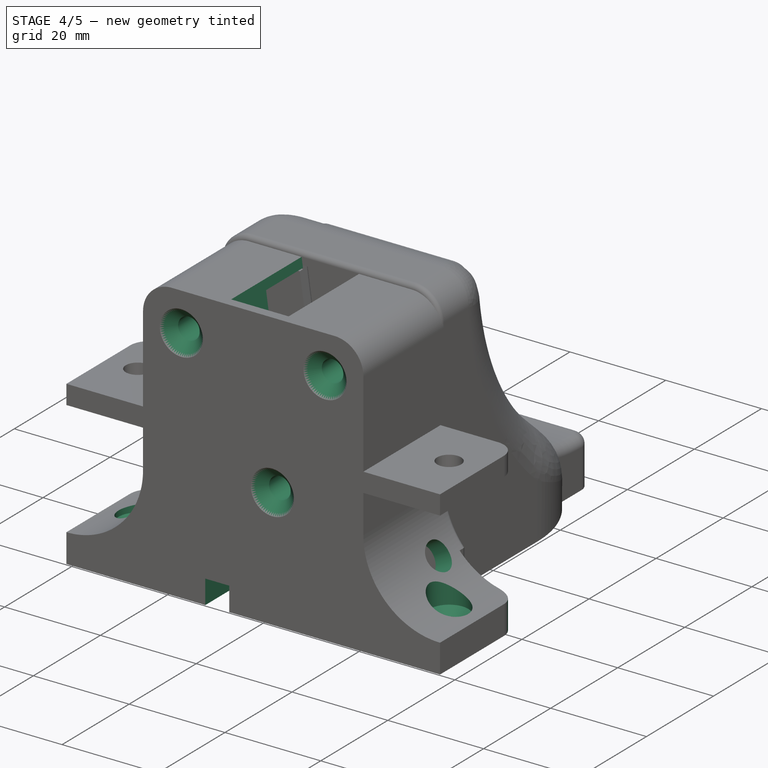
[diagram: stage 4 of 5 — iso view after this stage's code; geometry added in this stage tinted green]
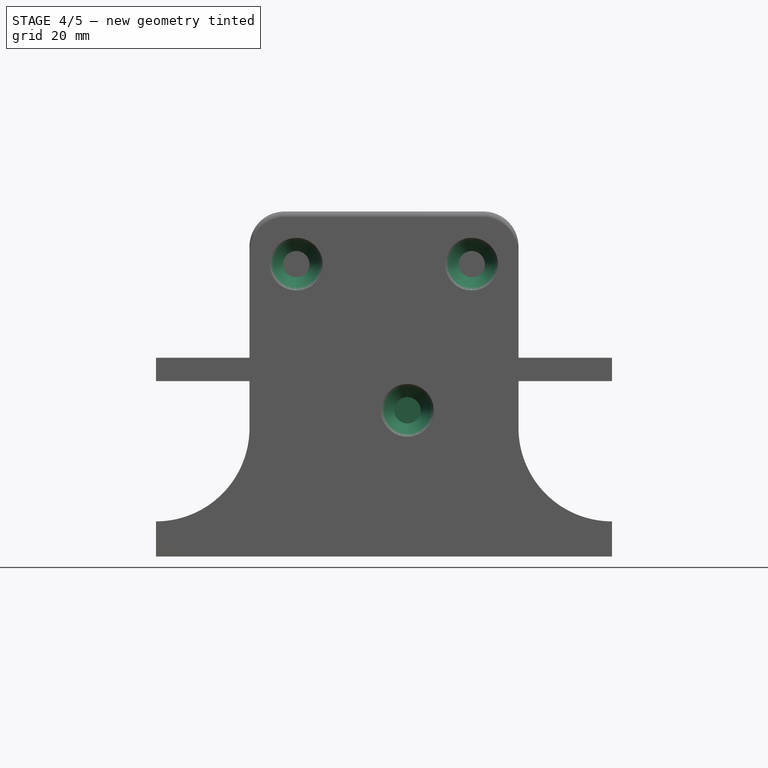
[diagram: stage 4 of 5 — front view after this stage's code; geometry added in this stage tinted green]
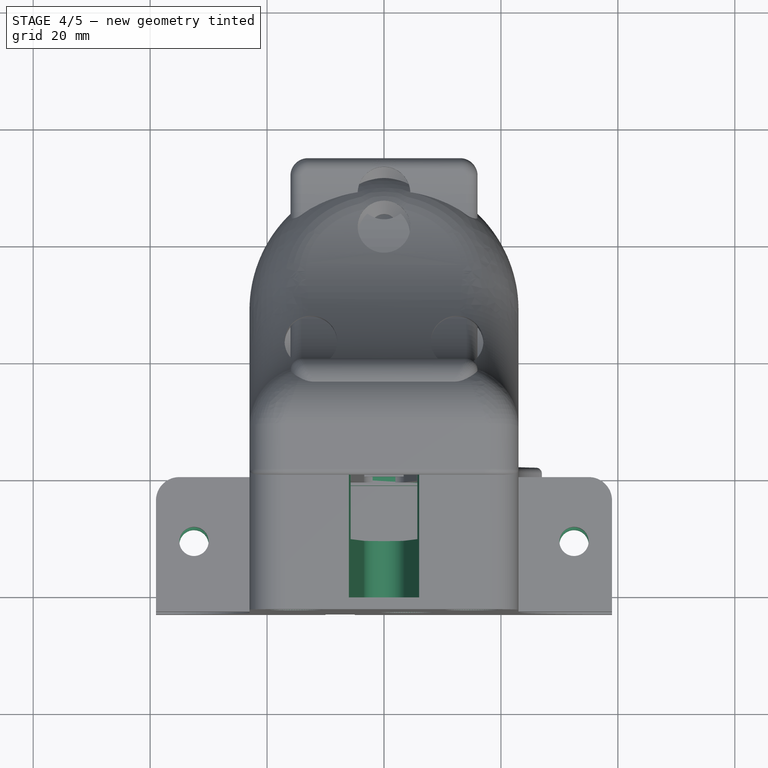
[diagram: stage 4 of 5 — top view after this stage's code; geometry added in this stage tinted green]
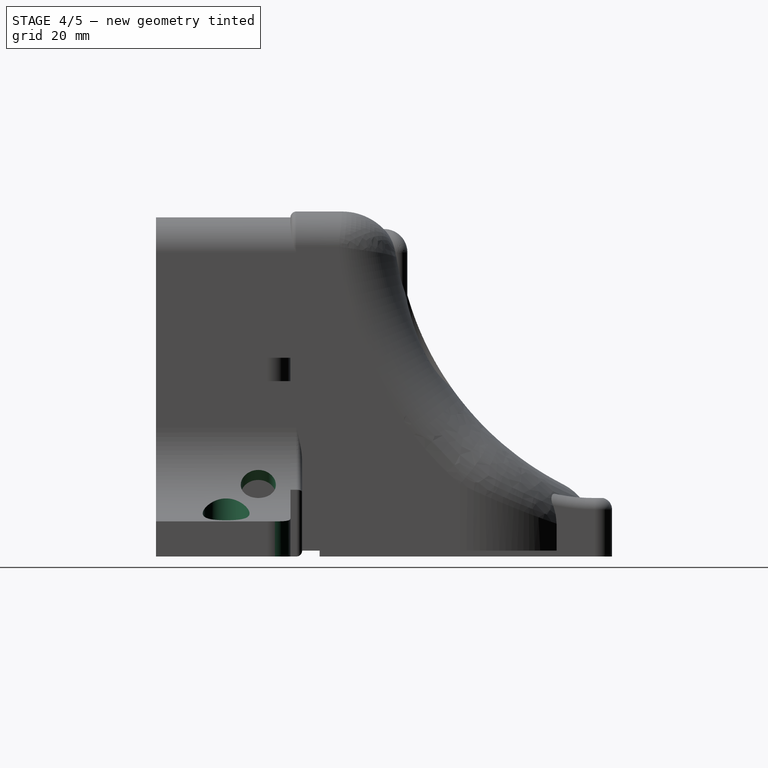
[diagram: stage 4 of 5 — right view after this stage's code; geometry added in this stage tinted green]
FEATURE [PartDesign::Body] Body  label="zamek"
  AllowCompound = false
  Group = -> [Sketch,Pad,Sketch001,Pocket,Sketch002,Pad001,Sketch003,Hole,Sketch004,Pocket001,Fillet,Sketch005,Pad002]
  Origin = -> Origin
  Placement = pos=(0,-1,0) rot=(0,0,1;0rad)
  Tip = -> Pad002
FEATURE [Sketcher::SketchObject] Sketch006
  ArcFitTolerance = 1e-06
  AttachmentSupport = -> [XZ_Plane001]
  FullyConstrained = true
  MakeInternals = false
  MapMode = 5
  Placement = pos=(0,0,0) rot=(1,0,0;1.5708rad)
  sketch-geometry (12):
    g0: LineSegment StartX=-15.075 StartY=6.075 StartZ=0 EndX=-15.075 EndY=-6.075 EndZ=0
    g1: LineSegment StartX=-13.575 StartY=-7.575 StartZ=0 EndX=13.575 EndY=-7.575 EndZ=0
    g2: LineSegment StartX=15.075 StartY=-6.075 StartZ=0 EndX=15.075 EndY=6.075 EndZ=0
    g3: LineSegment StartX=13.575 StartY=7.575 StartZ=0 EndX=-13.575 EndY=7.575 EndZ=0
    g4: ArcOfCircle CenterX=-13.575 CenterY=-6.075 CenterZ=0 NormalX=0 NormalY=0 NormalZ=1 AngleXU=0 Radius=1.5 StartAngle=3.14159 EndAngle=4.71239
    g5: GeomPoint [constr] X=-15.075 Y=-7.575 Z=0
    g6: ArcOfCircle CenterX=13.575 CenterY=-6.075 CenterZ=0 NormalX=0 NormalY=0 NormalZ=1 AngleXU=0 Radius=1.5 StartAngle=4.71239 EndAngle=6.28319
    g7: GeomPoint [constr] X=15.075 Y=-7.575 Z=0
    g8: ArcOfCircle CenterX=13.575 CenterY=6.075 CenterZ=0 NormalX=0 NormalY=0 NormalZ=1 AngleXU=0 Radius=1.5 StartAngle=0 EndAngle=1.5708
    g9: GeomPoint [constr] X=15.075 Y=7.575 Z=0
    g10: ArcOfCircle CenterX=-13.575 CenterY=6.075 CenterZ=0 NormalX=0 NormalY=0 NormalZ=1 AngleXU=0 Radius=1.5 StartAngle=1.5708 EndAngle=3.14159
    g11: GeomPoint [constr] X=-15.075 Y=7.575 Z=0
  constraints (26):
    c: Vertical(g2)
    c: Horizontal(g1)
    c: DistanceX(g11,g9) = 30.15
    c: DistanceY(g7,g9) = 15.15
    c: Symmetric(g11,g9,g-2)
    c: Symmetric(g11,g5,g-1)
    c: PointOnObject(g5,g0)
    c: PointOnObject(g5,g1)
    c: Tangent(g0,g4) = -1.5708
    c: Tangent(g1,g4) = -1.5708
    c: PointOnObject(g7,g1)
    c: PointOnObject(g7,g2)
    c: Tangent(g1,g6) = -1.5708
    c: Tangent(g2,g6) = -1.5708
    c: PointOnObject(g9,g2)
    c: PointOnObject(g9,g3)
    c: Tangent(g2,g8) = -1.5708
    c: Tangent(g3,g8) = -1.5708
    c: PointOnObject(g11,g0)
    c: PointOnObject(g11,g3)
    c: Tangent(g0,g10) = -1.5708
    c: Tangent(g3,g10) = -1.5708
    c: Radius(g10) = 1.5
    c: Equal(g10,g8)
    c: Equal(g10,g4)
    c: Equal(g10,g6)
FEATURE [PartDesign::Pad] Pad003
  Direction = (0,-1,2e-16)
  Length = 1.5
  Length2 = 10
  Placement = pos=(0,0,0) rot=(1,0,0;1.5708rad)
  Profile = -> Sketch006
  ReferenceAxis = -> Sketch006 [N_Axis]
  Refine = true
  Suppressed = false
  Type = 0
FEATURE [Sketcher::SketchObject] Sketch012
  ArcFitTolerance = 1e-06
  AttachmentSupport = -> [Pocket002]
  ExternalGeometry = -> [Pocket002]
  FullyConstrained = true
  MakeInternals = false
  MapMode = 5
  Placement = pos=(0,-1.5e-15,0) rot=(-1,0,0;1.5708rad)
  sketch-geometry (4):
    g0: LineSegment StartX=-6 StartY=-28 StartZ=0 EndX=-3.46578 EndY=-10.0117 EndZ=0
    g1: LineSegment StartX=6 StartY=-28 StartZ=0 EndX=3.46578 EndY=-10.0117 EndZ=0
    g2: LineSegment StartX=-6 StartY=-28 StartZ=0 EndX=6 EndY=-28 EndZ=0
    g3: ArcOfCircle CenterX=0 CenterY=-10.5 CenterZ=0 NormalX=0 NormalY=0 NormalZ=1 AngleXU=0 Radius=3.5 StartAngle=0.139961 EndAngle=3.00163
  constraints (10):
    c: PointOnObject(g0,g-3)
    c: Coincident(g2,g0)
    c: Coincident(g2,g1)
    c: Symmetric(g0,g1,g-2)
    c: PointOnObject(g3,g-2)
    c: Tangent(g3,g0) = 1.5708
    c: Tangent(g3,g1) = -1.5708
    c: Radius(g3) = 3.5
    c: DistanceX(g2,g2) = 12
    c: DistanceY(g1,g3) = 17.5
FEATURE [PartDesign::Pocket] Pocket003
  BaseFeature = -> Pocket002
  Direction = (0,-1,-2e-16)
  Length = 21
  Length2 = 5
  Placement = pos=(0,0,0) rot=(1,0,0;1.5708rad)
  Profile = -> Sketch012
  ReferenceAxis = -> Sketch012 [N_Axis]
  Refine = true
  Suppressed = false
  Type = 0
FEATURE [Sketcher::SketchObject] Sketch013
  ArcFitTolerance = 1e-06
  AttachmentSupport = -> [Pocket003]
  FullyConstrained = true
  MakeInternals = false
  MapMode = 5
  Placement = pos=(-2.8e-15,1.23e-14,28) rot=(0,0,1;3.14159rad)
  sketch-geometry (2):
    g0: Circle CenterX=-32.5 CenterY=11 CenterZ=0 NormalX=0 NormalY=0 NormalZ=1 AngleXU=0 Radius=2
    g1: Circle CenterX=32.5 CenterY=11 CenterZ=0 NormalX=0 NormalY=0 NormalZ=1 AngleXU=0 Radius=2
  constraints (5):
    c: DistanceY(g-1,g0) = 11
    c: Symmetric(g0,g1,g-2)
    c: DistanceX(g0,g1) = 65
    c: Diameter(g0) = 4
    c: Equal(g0,g1)
FEATURE [PartDesign::Hole] Hole002
  BaseFeature = -> Pocket003
  CustomThreadClearance = 0
  Depth = 201.768
  DepthType = 1
  Diameter = 5
  DrillForDepth = false
  DrillPoint = 1
  DrillPointAngle = 118
  HoleCutCountersinkAngle = 90
  HoleCutCustomValues = false
  HoleCutDepth = 53
  HoleCutDiameter = 8
  HoleCutType = 3
  ModelThread = false
  Placement = pos=(0,0,0) rot=(1,0,0;1.5708rad)
  Profile = -> Sketch013
  Refine = true
  Suppressed = false
  Tapered = false
  TaperedAngle = 90
  ThreadClass = 0
  ThreadDepth = 201.768
  ThreadDepthType = 0
  ThreadDirection = 0
  ThreadFit = 0
  ThreadSize = 0
  ThreadType = 0
  Threaded = false
  UseCustomThreadClearance = false
FEATURE [PartDesign::Fillet] Fillet001
  Base = -> Hole002 [Edge14,Edge3]
  BaseFeature = -> Hole002
  Placement = pos=(0,0,0) rot=(1,0,0;1.5708rad)
  Radius = 4
  Refine = true
  SupportTransform = false
  Suppressed = false
  UseAllEdges = false
FEATURE [Sketcher::SketchObject] Sketch014
  ArcFitTolerance = 1e-06
  AttachmentSupport = -> [Fillet001]
  ExternalGeometry = -> [Fillet001]
  FullyConstrained = true
  MakeInternals = false
  MapMode = 5
  Placement = pos=(0,-1.5e-15,0) rot=(-1,0,0;1.5708rad)
  sketch-geometry (3):
    g0: LineSegment StartX=21 StartY=26 StartZ=0 EndX=25.5 EndY=23.4019 EndZ=0
    g1: LineSegment StartX=25.5 StartY=23.4019 StartZ=0 EndX=21 EndY=15.6077 EndZ=0
    g2: LineSegment StartX=21 StartY=26 StartZ=0 EndX=21 EndY=15.6077 EndZ=0
  constraints (8):
    c: Coincident(g0,g-3)
    c: Coincident(g1,g0)
    c: PointOnObject(g1,g-3)
    c: Perpendicular(g0,g1)
    c: Coincident(g2,g0)
    c: Coincident(g2,g1)
    c: Angle(g1,g2) = 0.523599
    c: Distance(g1) = 9
FEATURE [PartDesign::Pocket] Pocket004
  BaseFeature = -> Fillet001
  Direction = (0,-1,-2e-16)
  Length = 11
  Length2 = 5
  Placement = pos=(0,0,0) rot=(1,0,0;1.5708rad)
  Profile = -> Sketch014
  ReferenceAxis = -> Sketch014 [N_Axis]
  Refine = true
  Suppressed = false
  Type = 0
FEATURE [Sketcher::SketchObject] Sketch015
  ArcFitTolerance = 1e-06
  AttachmentSupport = -> [Pocket004]
  ExternalGeometry = -> [Pocket004]
  FullyConstrained = true
  MakeInternals = false
  MapMode = 5
  Placement = pos=(8.99167,0,5.19134) rot=(0.866025,0,-0.5;3.14159rad)
  sketch-geometry (1):
    g0: Circle CenterX=28.5167 CenterY=5.5 CenterZ=0 NormalX=0 NormalY=0 NormalZ=1 AngleXU=0 Radius=3
  constraints (2):
    c: Symmetric(g-4,g-3,g0)
    c: Diameter(g0) = 6
FEATURE [PartDesign::Pocket] Pocket005
  BaseFeature = -> Pocket004
  Direction = (0.866025,0,0.5)
  Length = 5
  Length2 = 5
  Placement = pos=(0,0,0) rot=(1,0,0;1.5708rad)
  Profile = -> Sketch015
  ReferenceAxis = -> Sketch015 [N_Axis]
  Refine = true
  Suppressed = false
  Type = 1
FEATURE [Sketcher::SketchObject] Sketch016
  ArcFitTolerance = 1e-06
  AttachmentOffset = pos=(0,0,-12) rot=(0,0,1;0rad)
  AttachmentSupport = -> [Pocket005]
  ExternalGeometry = -> [Pocket005]
  FullyConstrained = true
  MakeInternals = false
  MapMode = 5
  Placement = pos=(0,-23,-2.7e-15) rot=(-1,0,0;1.5708rad)
  sketch-geometry (5):
    g0: Circle CenterX=-15 CenterY=-20 CenterZ=0 NormalX=0 NormalY=0 NormalZ=1 AngleXU=0 Radius=2.25
    g1: Circle CenterX=15 CenterY=-20 CenterZ=0 NormalX=0 NormalY=0 NormalZ=1 AngleXU=0 Radius=2.25
    g2: Circle CenterX=4 CenterY=5 CenterZ=0 NormalX=0 NormalY=0 NormalZ=1 AngleXU=0 Radius=2.25
    g3: LineSegment [constr] StartX=15 StartY=-20 StartZ=0 EndX=15 EndY=-26 EndZ=0
    g4: LineSegment [constr] StartX=15 StartY=-20 StartZ=0 EndX=21 EndY=-20 EndZ=0
  constraints (14):
    c: DistanceX(g0,g1) = 30
    c: DistanceX(g2,g1) = 11
    c: DistanceY(g1,g2) = 25
    c: Symmetric(g0,g1,g-2)
    c: Coincident(g3,g1)
    c: PointOnObject(g3,g-3)
    c: Vertical(g3)
    c: Coincident(g4,g1)
    c: PointOnObject(g4,g-4)
    c: Horizontal(g4)
    c: Equal(g4,g3)
    c: Diameter(g0) = 4.5
    c: Equal(g0,g1)
    c: Equal(g0,g2)
FEATURE [PartDesign::Hole] Hole003
  BaseFeature = -> Pocket005
  CustomThreadClearance = 0
  Depth = 25
  DepthType = 0
  Diameter = 4.5
  DrillForDepth = false
  DrillPoint = 1
  DrillPointAngle = 118
  HoleCutCountersinkAngle = 90
  HoleCutCustomValues = false
  HoleCutDepth = 0
  HoleCutDiameter = 9
  HoleCutType = 2
  ModelThread = false
  Placement = pos=(0,0,0) rot=(1,0,0;1.5708rad)
  Profile = -> Sketch016
  Refine = true
  Reversed = true
  Suppressed = false
  Tapered = false
  TaperedAngle = 90
  ThreadClass = 0
  ThreadDepth = 25
  ThreadDepthType = 0
  ThreadDirection = 0
  ThreadFit = 0
  ThreadSize = 0
  ThreadType = 0
  Threaded = false
  UseCustomThreadClearance = false
FEATURE [Sketcher::SketchObject] Sketch017
  ArcFitTolerance = 1e-06
  AttachmentSupport = -> [Hole003]
  ExternalGeometry = -> [Hole003]
  FullyConstrained = true
  MakeInternals = false
  MapMode = 5
  Placement = pos=(0,-1.5e-15,0) rot=(-1,0,0;1.5708rad)
  sketch-geometry (4):
    g0: LineSegment StartX=-10 StartY=30 StartZ=0 EndX=-10 EndY=26 EndZ=0
    g1: LineSegment StartX=-10 StartY=26 StartZ=0 EndX=-5 EndY=26 EndZ=0
    g2: LineSegment StartX=-5 StartY=26 StartZ=0 EndX=-5 EndY=30 EndZ=0
    g3: LineSegment StartX=-5 StartY=30 StartZ=0 EndX=-10 EndY=30 EndZ=0
  constraints (12):
    c: Coincident(g0,g1)
    c: Coincident(g1,g2)
    c: Coincident(g2,g3)
    c: Coincident(g3,g0)
    c: Vertical(g0)
    c: Vertical(g2)
    c: Horizontal(g1)
    c: Horizontal(g3)
    c: PointOnObject(g0,g-4)
    c: PointOnObject(g1,g-3)
    c: DistanceX(g-5,g0) = 11
    c: DistanceX(g0,g2) = 5
FEATURE [PartDesign::Pocket] Pocket006
  BaseFeature = -> Hole003
  Direction = (0,-1,-2e-16)
  Length = 10
  Length2 = 5
  Placement = pos=(0,0,0) rot=(1,0,0;1.5708rad)
  Profile = -> Sketch017
  ReferenceAxis = -> Sketch017 [N_Axis]
  Refine = true
  Suppressed = false
  Type = 0
FEATURE [Sketcher::SketchObject] Sketch018
  ArcFitTolerance = 1e-06
  AttachmentSupport = -> [Pocket006]
  ExternalGeometry = -> [Pocket006]
  FullyConstrained = true
  MakeInternals = false
  MapMode = 5
  Placement = pos=(0,-1.32e-14,-30) rot=(1,0,0;3.14159rad)
  sketch-geometry (4):
    g0: LineSegment StartX=-10 StartY=10 StartZ=0 EndX=-5 EndY=10 EndZ=0
    g1: LineSegment StartX=-5 StartY=10 StartZ=0 EndX=-5 EndY=23 EndZ=0
    g2: LineSegment StartX=-5 StartY=23 StartZ=0 EndX=-10 EndY=23 EndZ=0
    g3: LineSegment StartX=-10 StartY=23 StartZ=0 EndX=-10 EndY=10 EndZ=0
  constraints (10):
    c: Coincident(g0,g1)
    c: Coincident(g1,g2)
    c: Coincident(g2,g3)
    c: Coincident(g3,g0)
    c: Horizontal(g2)
    c: Vertical(g1)
    c: Vertical(g3)
    c: Coincident(g0,g-3)
    c: PointOnObject(g1,g-4)
    c: Coincident(g-3,g0)
FEATURE [PartDesign::Pocket] Pocket007
  BaseFeature = -> Pocket006
  Direction = (0,0,1)
  Length = 5
  Length2 = 5
  Placement = pos=(0,0,0) rot=(1,0,0;1.5708rad)
  Profile = -> Sketch018
  ReferenceAxis = -> Sketch018 [N_Axis]
  Refine = true
  Suppressed = false
  Type = 0
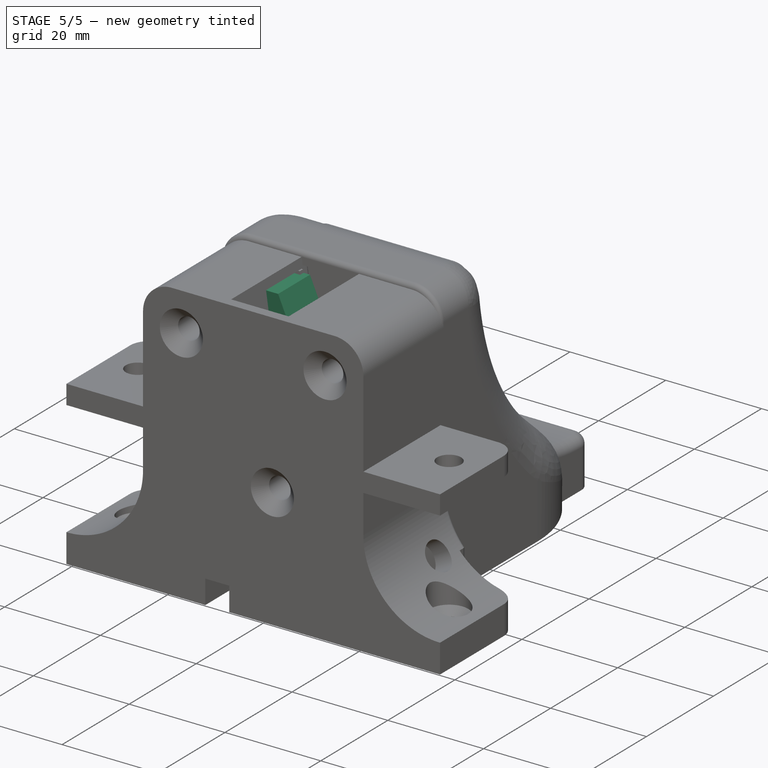
[diagram: stage 5 of 5 — iso view after this stage's code; geometry added in this stage tinted green]
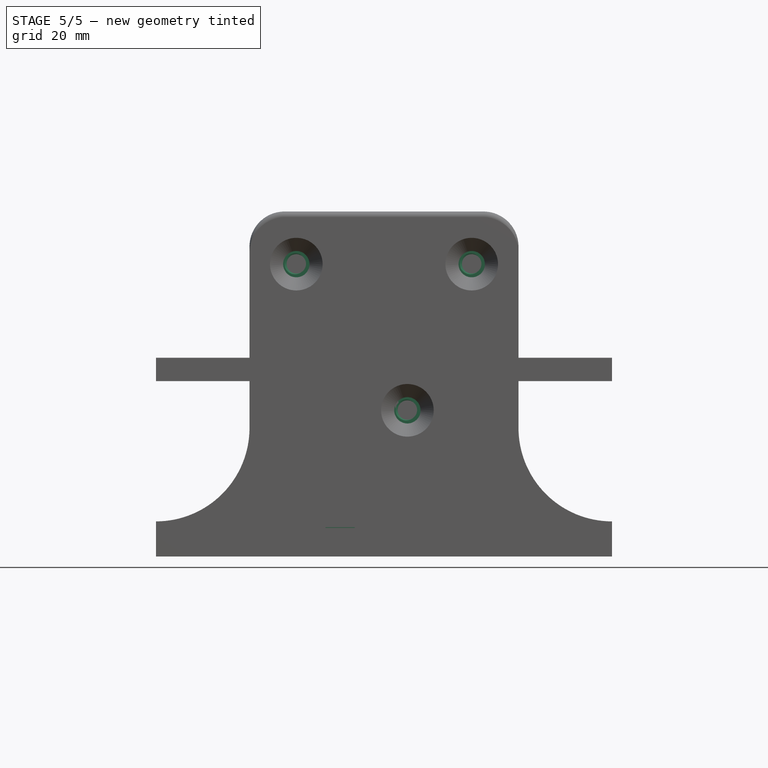
[diagram: stage 5 of 5 — front view after this stage's code; geometry added in this stage tinted green]
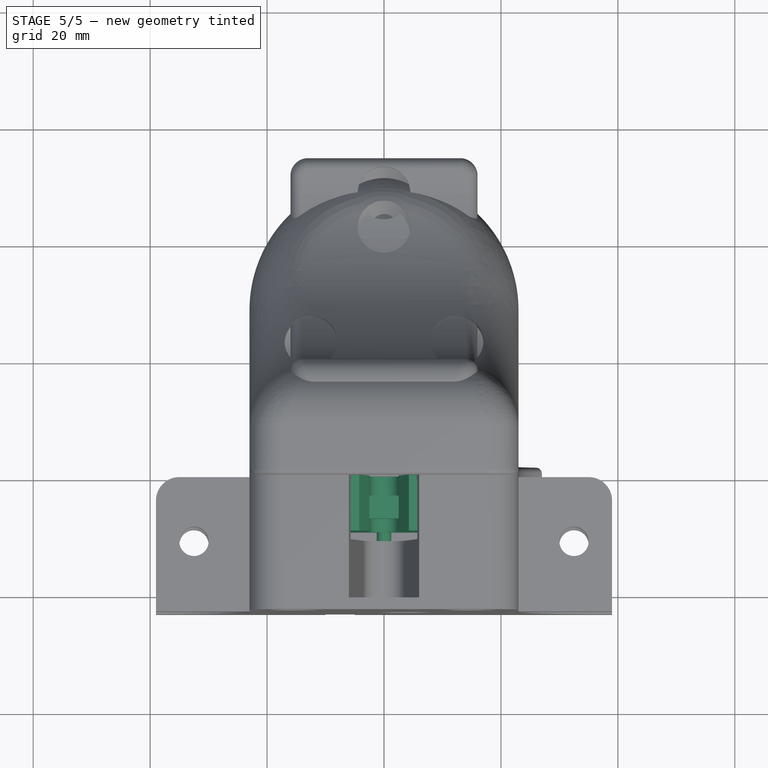
[diagram: stage 5 of 5 — top view after this stage's code; geometry added in this stage tinted green]
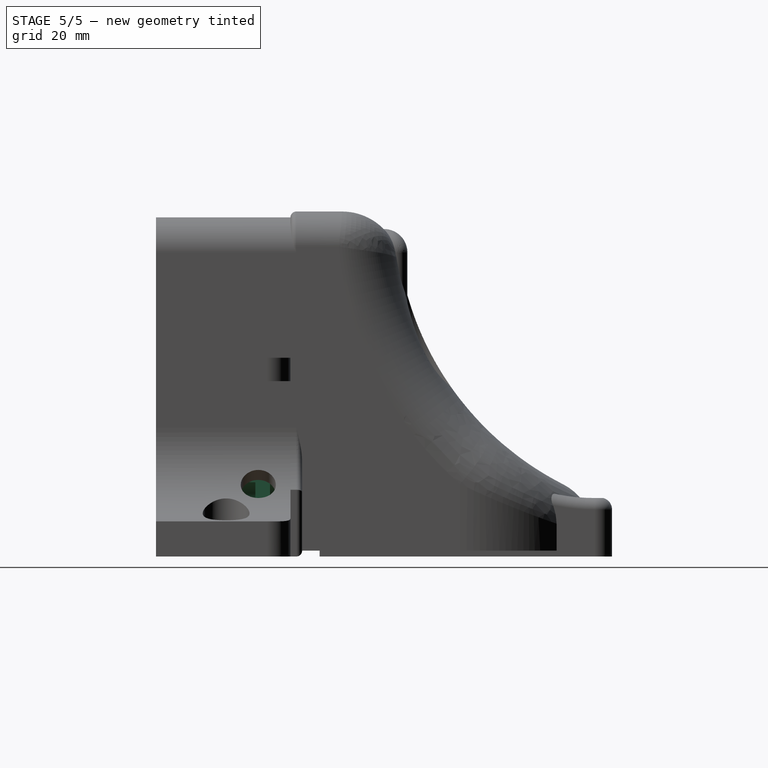
[diagram: stage 5 of 5 — right view after this stage's code; geometry added in this stage tinted green]
FEATURE [Sketcher::SketchObject] Sketch
  ArcFitTolerance = 1e-06
  AttachmentSupport = -> [XZ_Plane]
  FullyConstrained = true
  MakeInternals = false
  MapMode = 5
  Placement = pos=(0,0,0) rot=(1,0,0;1.5708rad)
  sketch-geometry (4):
    g0: LineSegment StartX=-20.05 StartY=25.1 StartZ=0 EndX=-20.05 EndY=-25.1 EndZ=0
    g1: LineSegment StartX=-20.05 StartY=-25.1 StartZ=0 EndX=20.05 EndY=-25.1 EndZ=0
    g2: LineSegment StartX=20.05 StartY=-25.1 StartZ=0 EndX=20.05 EndY=25.1 EndZ=0
    g3: LineSegment StartX=20.05 StartY=25.1 StartZ=0 EndX=-20.05 EndY=25.1 EndZ=0
  constraints (10):
    c: Coincident(g0,g1)
    c: Coincident(g1,g2)
    c: Coincident(g2,g3)
    c: Coincident(g3,g0)
    c: Vertical(g2)
    c: Horizontal(g1)
    c: DistanceX(g3,g3) = 40.1
    c: DistanceY(g0,g0) = 50.2
    c: Symmetric(g0,g2,g-2)
    c: Symmetric(g0,g0,g-1)
FEATURE [PartDesign::Pad] Pad
  Direction = (0,-1,2e-16)
  Length = 9.5
  Length2 = 10
  Placement = pos=(0,0,0) rot=(1,0,0;1.5708rad)
  Profile = -> Sketch
  ReferenceAxis = -> Sketch [N_Axis]
  Refine = true
  Suppressed = false
  Type = 0
FEATURE [Sketcher::SketchObject] Sketch001
  ArcFitTolerance = 1e-06
  AttachmentSupport = -> [Pad]
  ExternalGeometry = -> [Pad]
  FullyConstrained = true
  MakeInternals = false
  MapMode = 5
  Placement = pos=(0,-9.5,0) rot=(1,0,0;1.5708rad)
  sketch-geometry (6):
    g0: LineSegment StartX=-4.25 StartY=25.1 StartZ=0 EndX=-2.5 EndY=21.1 EndZ=0
    g1: LineSegment StartX=-2.5 StartY=21.1 StartZ=0 EndX=-2.5 EndY=10.6 EndZ=0
    g2: LineSegment StartX=2.5 StartY=21.1 StartZ=0 EndX=2.5 EndY=10.6 EndZ=0
    g3: LineSegment StartX=2.5 StartY=21.1 StartZ=0 EndX=4.25 EndY=25.1 EndZ=0
    g4: LineSegment StartX=-4.25 StartY=25.1 StartZ=0 EndX=4.25 EndY=25.1 EndZ=0
    g5: ArcOfCircle CenterX=0 CenterY=10.6 CenterZ=0 NormalX=0 NormalY=0 NormalZ=1 AngleXU=0 Radius=2.5 StartAngle=3.14159 EndAngle=6.28319
  constraints (17):
    c: PointOnObject(g0,g-3)
    c: Coincident(g1,g0)
    c: Vertical(g1)
    c: Vertical(g2)
    c: Coincident(g3,g2)
    c: PointOnObject(g3,g-3)
    c: Coincident(g4,g0)
    c: Coincident(g4,g3)
    c: PointOnObject(g5,g-2)
    c: Tangent(g5,g1) = -1.5708
    c: Tangent(g5,g2) = 1.5708
    c: Diameter(g5) = 5
    c: Horizontal(g0,g2)
    c: DistanceX(g4,g4) = 8.5
    c: DistanceY(g0,g0) = 4
    c: Equal(g0,g3)
    c: DistanceY(g5,g0) = 14.5
FEATURE [PartDesign::Pocket] Pocket
  BaseFeature = -> Pad
  Direction = (0,1,-2e-16)
  Length = 5
  Length2 = 5
  Placement = pos=(0,0,0) rot=(1,0,0;1.5708rad)
  Profile = -> Sketch001
  ReferenceAxis = -> Sketch001 [N_Axis]
  Refine = true
  Suppressed = false
  Type = 1
FEATURE [Sketcher::SketchObject] Sketch002
  ArcFitTolerance = 1e-06
  AttachmentSupport = -> [Pocket]
  ExternalGeometry = -> [Pocket]
  FullyConstrained = true
  MakeInternals = false
  MapMode = 5
  Placement = pos=(-2.5,0,0) rot=(0.707107,0,0.707107;3.14159rad)
  sketch-geometry (4):
    g0: LineSegment StartX=13.9 StartY=7.3 StartZ=0 EndX=13.9 EndY=3.4 EndZ=0
    g1: LineSegment StartX=13.9 StartY=3.4 StartZ=0 EndX=17.8 EndY=3.4 EndZ=0
    g2: LineSegment StartX=17.8 StartY=3.4 StartZ=0 EndX=17.8 EndY=7.3 EndZ=0
    g3: LineSegment StartX=17.8 StartY=7.3 StartZ=0 EndX=13.9 EndY=7.3 EndZ=0
  constraints (12):
    c: Coincident(g0,g1)
    c: Coincident(g1,g2)
    c: Coincident(g2,g3)
    c: Coincident(g3,g0)
    c: Vertical(g0)
    c: Vertical(g2)
    c: Horizontal(g1)
    c: Horizontal(g3)
    c: DistanceX(g3,g3) = 3.9
    c: DistanceY(g2,g2) = 3.9
    c: DistanceX(g2,g-4) = 7.3
    c: DistanceY(g2,g-4) = 2.2
FEATURE [PartDesign::Pad] Pad001
  BaseFeature = -> Pocket
  Direction = (1,0,-2e-16)
  Length = 10
  Length2 = 10
  Placement = pos=(0,0,0) rot=(1,0,0;1.5708rad)
  Profile = -> Sketch002
  ReferenceAxis = -> Sketch002 [N_Axis]
  Refine = true
  Suppressed = false
  Type = 2
FEATURE [Sketcher::SketchObject] Sketch003
  ArcFitTolerance = 1e-06
  AttachmentSupport = -> [Pad001]
  ExternalGeometry = -> [Pad001]
  FullyConstrained = true
  MakeInternals = false
  MapMode = 5
  Placement = pos=(0,-9.5,0) rot=(1,0,0;1.5708rad)
  sketch-geometry (7):
    g0: Circle CenterX=-15 CenterY=20.05 CenterZ=0 NormalX=0 NormalY=0 NormalZ=1 AngleXU=0 Radius=1.8
    g1: Circle CenterX=15 CenterY=20.05 CenterZ=0 NormalX=0 NormalY=0 NormalZ=1 AngleXU=0 Radius=1.8
    g2: Circle CenterX=4 CenterY=-4.95 CenterZ=0 NormalX=0 NormalY=0 NormalZ=1 AngleXU=0 Radius=1.8
    g3: LineSegment [constr] StartX=-15 StartY=20.05 StartZ=0 EndX=-20.05 EndY=20.05 EndZ=0
    g4: LineSegment [constr] StartX=-15 StartY=20.05 StartZ=0 EndX=-15 EndY=25.1 EndZ=0
    g5: LineSegment [constr] StartX=15 StartY=20.05 StartZ=0 EndX=20.05 EndY=20.05 EndZ=0
    g6: LineSegment [constr] StartX=15 StartY=20.05 StartZ=0 EndX=15 EndY=25.1 EndZ=0
  constraints (21):
    c: DistanceX(g0,g1) = 30
    c: DistanceY(g2,g1) = 25
    c: Horizontal(g0,g1)
    c: Coincident(g3,g0)
    c: PointOnObject(g3,g-6)
    c: Horizontal(g3)
    c: Coincident(g4,g0)
    c: PointOnObject(g4,g-4)
    c: Vertical(g4)
    c: Coincident(g5,g1)
    c: PointOnObject(g5,g-5)
    c: Horizontal(g5)
    c: Coincident(g6,g1)
    c: PointOnObject(g6,g-3)
    c: Vertical(g6)
    c: Equal(g5,g3)
    c: Equal(g6,g5)
    c: Diameter(g1) = 3.6
    c: Equal(g1,g0)
    c: Equal(g1,g2)
    c: DistanceX(g2,g1) = 11
FEATURE [PartDesign::Hole] Hole
  BaseFeature = -> Pad001
  CustomThreadClearance = 0
  Depth = 131.196
  DepthType = 1
  Diameter = 3.322
  DrillForDepth = false
  DrillPoint = 1
  DrillPointAngle = 118
  HoleCutCountersinkAngle = 90
  HoleCutCustomValues = false
  HoleCutDepth = 0
  HoleCutDiameter = 4
  HoleCutType = 0
  ModelThread = true
  Placement = pos=(0,0,0) rot=(1,0,0;1.5708rad)
  Profile = -> Sketch003
  Refine = true
  Suppressed = false
  Tapered = false
  TaperedAngle = 90
  ThreadClass = 0
  ThreadDepth = 131.196
  ThreadDepthType = 0
  ThreadDirection = 0
  ThreadFit = 0
  ThreadSize = 11
  ThreadType = 1
  Threaded = true
  UseCustomThreadClearance = false
FEATURE [Sketcher::SketchObject] Sketch004
  ArcFitTolerance = 1e-06
  AttachmentSupport = -> [Hole]
  ExternalGeometry = -> [Hole]
  FullyConstrained = true
  MakeInternals = false
  MapMode = 5
  Placement = pos=(0,-9.5,0) rot=(1,0,0;1.5708rad)
  sketch-geometry (4):
    g0: LineSegment StartX=20.05 StartY=-25.1 StartZ=0 EndX=20.05 EndY=-17.3 EndZ=0
    g1: LineSegment StartX=20.05 StartY=-17.3 StartZ=0 EndX=12.25 EndY=-17.3 EndZ=0
    g2: LineSegment StartX=12.25 StartY=-17.3 StartZ=0 EndX=12.25 EndY=-25.1 EndZ=0
    g3: LineSegment StartX=12.25 StartY=-25.1 StartZ=0 EndX=20.05 EndY=-25.1 EndZ=0
  constraints (11):
    c: Coincident(g0,g1)
    c: Coincident(g1,g2)
    c: Coincident(g2,g3)
    c: Coincident(g3,g0)
    c: Vertical(g0)
    c: Vertical(g2)
    c: Horizontal(g1)
    c: Horizontal(g3)
    c: Coincident(g0,g-3)
    c: DistanceX(g1,g1) = 7.8
    c: DistanceY(g2,g2) = 7.8
FEATURE [PartDesign::Pocket] Pocket001
  BaseFeature = -> Hole
  Direction = (0,1,-2e-16)
  Length = 5
  Length2 = 5
  Placement = pos=(0,0,0) rot=(1,0,0;1.5708rad)
  Profile = -> Sketch004
  ReferenceAxis = -> Sketch004 [N_Axis]
  Refine = true
  Suppressed = false
  Type = 1
FEATURE [PartDesign::Fillet] Fillet
  Base = -> Pocket001 [Edge1,Edge62,Edge2,Edge60]
  BaseFeature = -> Pocket001
  Placement = pos=(0,0,0) rot=(1,0,0;1.5708rad)
  Radius = 4
  Refine = true
  SupportTransform = false
  Suppressed = false
  UseAllEdges = false
FEATURE [Sketcher::SketchObject] Sketch005
  ArcFitTolerance = 1e-06
  AttachmentOffset = pos=(0,0,-3.5) rot=(0,0,1;0rad)
  AttachmentSupport = -> [Fillet]
  ExternalGeometry = -> [Fillet]
  FullyConstrained = true
  MakeInternals = false
  MapMode = 5
  Placement = pos=(0,-6,-8e-16) rot=(1,0,0;1.5708rad)
  sketch-geometry (6):
    g0: LineSegment StartX=16.85 StartY=-17.3 StartZ=0 EndX=16.85 EndY=-21.1 EndZ=0
    g1: LineSegment StartX=16.85 StartY=-21.1 StartZ=0 EndX=18.05 EndY=-21.1 EndZ=0
    g2: LineSegment StartX=18.05 StartY=-21.1 StartZ=0 EndX=18.05 EndY=-22.8 EndZ=0
    g3: LineSegment StartX=18.05 StartY=-22.8 StartZ=0 EndX=15.05 EndY=-22.8 EndZ=0
    g4: LineSegment StartX=15.05 StartY=-22.8 StartZ=0 EndX=15.05 EndY=-17.3 EndZ=0
    g5: LineSegment StartX=15.05 StartY=-17.3 StartZ=0 EndX=16.85 EndY=-17.3 EndZ=0
  constraints (18):
    c: PointOnObject(g0,g-3)
    c: Vertical(g0)
    c: Coincident(g1,g0)
    c: Coincident(g2,g1)
    c: Vertical(g2)
    c: Coincident(g3,g2)
    c: Horizontal(g3)
    c: Coincident(g4,g3)
    c: Vertical(g4)
    c: Coincident(g5,g0)
    c: DistanceX(g5,g5) = 1.8
    c: Coincident(g5,g4)
    c: Horizontal(g5)
    c: DistanceX(g4,g-3) = 5
    c: DistanceY(g4,g4) = 5.5
    c: DistanceY(g2,g2) = 1.7
    c: Horizontal(g1)
    c: DistanceX(g3,g3) = 3
FEATURE [PartDesign::Pad] Pad002
  BaseFeature = -> Fillet
  Direction = (0,-1,2e-16)
  Length = 2.5
  Length2 = 10
  Placement = pos=(0,0,0) rot=(1,0,0;1.5708rad)
  Profile = -> Sketch005
  ReferenceAxis = -> Sketch005 [N_Axis]
  Refine = true
  Reversed = true
  Suppressed = false
  Type = 0
FEATURE [Sketcher::SketchObject] Sketch007
  ArcFitTolerance = 1e-06
  AttachmentSupport = -> [Pad003]
  FullyConstrained = true
  MakeInternals = false
  MapMode = 5
  Placement = pos=(0,-1.5,0) rot=(1,0,0;1.5708rad)
  sketch-geometry (2):
    g0: Circle CenterX=-10 CenterY=0 CenterZ=0 NormalX=0 NormalY=0 NormalZ=1 AngleXU=0 Radius=1.55
    g1: Circle CenterX=10 CenterY=0 CenterZ=0 NormalX=0 NormalY=0 NormalZ=1 AngleXU=0 Radius=1.55
  constraints (5):
    c: PointOnObject(g0,g-1)
    c: Symmetric(g0,g1,g-1)
    c: DistanceX(g0,g1) = 20
    c: Diameter(g0) = 3.1
    c: Equal(g0,g1)
FEATURE [PartDesign::Hole] Hole001
  BaseFeature = -> Pad003
  CustomThreadClearance = 0
  Depth = 25
  DepthType = 0
  Diameter = 3
  DrillForDepth = false
  DrillPoint = 1
  DrillPointAngle = 118
  HoleCutCountersinkAngle = 90
  HoleCutCustomValues = false
  HoleCutDepth = 0
  HoleCutDiameter = 6.1
  HoleCutType = 2
  ModelThread = false
  Placement = pos=(0,0,0) rot=(1,0,0;1.5708rad)
  Profile = -> Sketch007
  Refine = true
  Suppressed = false
  Tapered = false
  TaperedAngle = 90
  ThreadClass = 0
  ThreadDepth = 25
  ThreadDepthType = 0
  ThreadDirection = 0
  ThreadFit = 0
  ThreadSize = 0
  ThreadType = 0
  Threaded = false
  UseCustomThreadClearance = false
FEATURE [Sketcher::SketchObject] Sketch008
  ArcFitTolerance = 1e-06
  AttachmentSupport = -> [YZ_Plane001]
  ExternalGeometry = -> [Hole001]
  FullyConstrained = true
  MakeInternals = false
  MapMode = 5
  Placement = pos=(0,0,0) rot=(0.57735,0.57735,0.57735;2.0944rad)
  sketch-geometry (7):
    g0: LineSegment StartX=-1.5 StartY=5 StartZ=0 EndX=-18 EndY=5 EndZ=0
    g1: LineSegment StartX=-1.5 StartY=-5 StartZ=0 EndX=-18 EndY=-5 EndZ=0
    g2: LineSegment StartX=-20.5 StartY=-2.5 StartZ=0 EndX=-20.5 EndY=2.5 EndZ=0
    g3: ArcOfCircle CenterX=-18 CenterY=2.5 CenterZ=0 NormalX=0 NormalY=0 NormalZ=1 AngleXU=0 Radius=2.5 StartAngle=1.5708 EndAngle=3.14159
    g4: GeomPoint [constr] X=-20.5 Y=5 Z=0
    g5: ArcOfCircle CenterX=-18 CenterY=-2.5 CenterZ=0 NormalX=0 NormalY=0 NormalZ=1 AngleXU=0 Radius=2.5 StartAngle=3.14159 EndAngle=4.71239
    g6: GeomPoint [constr] X=-20.5 Y=-5 Z=0
  constraints (17):
    c: PointOnObject(g0,g-3)
    c: Horizontal(g0)
    c: PointOnObject(g1,g-3)
    c: Horizontal(g1)
    c: Symmetric(g4,g6,g-1)
    c: DistanceY(g6,g4) = 10
    c: DistanceX(g4,g0) = 19
    c: PointOnObject(g4,g0)
    c: PointOnObject(g4,g2)
    c: Tangent(g0,g3) = -1.5708
    c: Tangent(g2,g3) = 1.5708
    c: PointOnObject(g6,g1)
    c: PointOnObject(g6,g2)
    c: Tangent(g1,g5) = 1.5708
    c: Tangent(g2,g5) = 1.5708
    c: Radius(g3) = 2.5
    c: Equal(g3,g5)
FEATURE [Sketcher::SketchObject] Sketch009
  ArcFitTolerance = 1e-06
  AttachmentSupport = -> [Hole001]
  ExternalGeometry = -> [Sketch008]
  FullyConstrained = true
  MakeInternals = false
  MapMode = 5
  Placement = pos=(0,-1.5,0) rot=(1,0,0;1.5708rad)
  sketch-geometry (1):
    g0: Circle CenterX=0 CenterY=-5 CenterZ=0 NormalX=0 NormalY=0 NormalZ=1 AngleXU=0 Radius=1.25
  constraints (2):
    c: Coincident(g0,g-3)
    c: Diameter(g0) = 2.5
FEATURE [PartDesign::AdditivePipe] AdditivePipe
  AuxilleryCurvelinear = true
  AuxillerySpineTangent = false
  BaseFeature = -> Hole001
  Binormal = (0,0,0)
  Mode = 0
  Placement = pos=(0,0,0) rot=(1,0,0;1.5708rad)
  Profile = -> Sketch009
  Refine = true
  Spine = -> Sketch008 [Edge5,Edge4,Edge3,Edge2,Edge1]
  SpineTangent = false
  Suppressed = false
  Transformation = 0
  Transition = 0
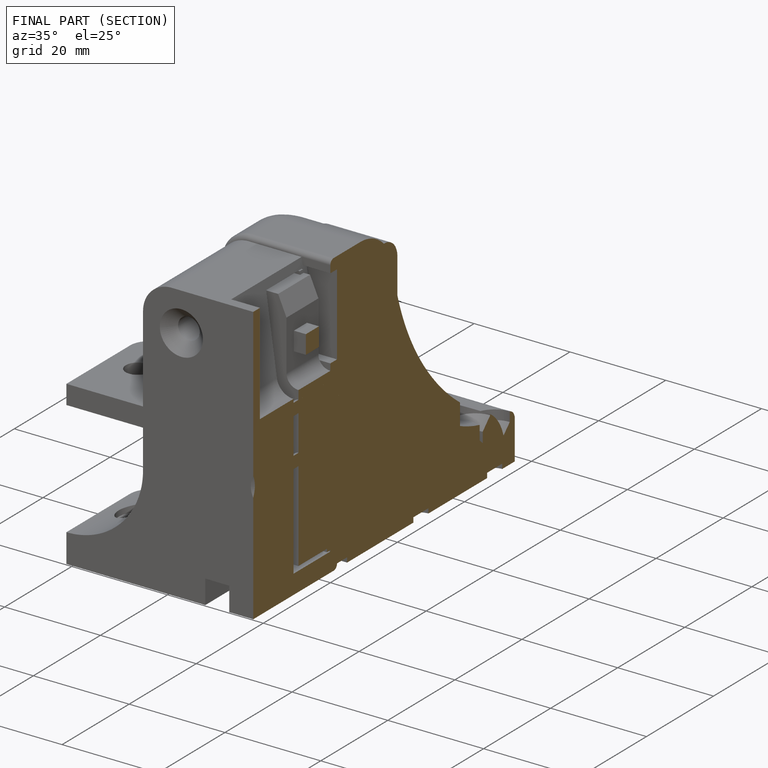
[diagram: finished part — half-section view (interior)]
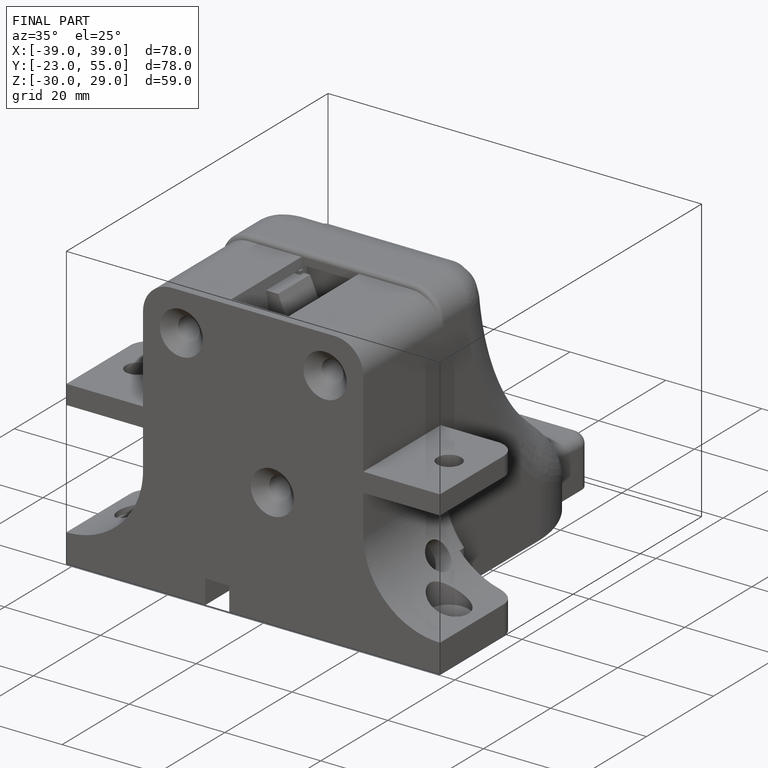
[diagram: finished part — iso view with bounding-box wireframe]
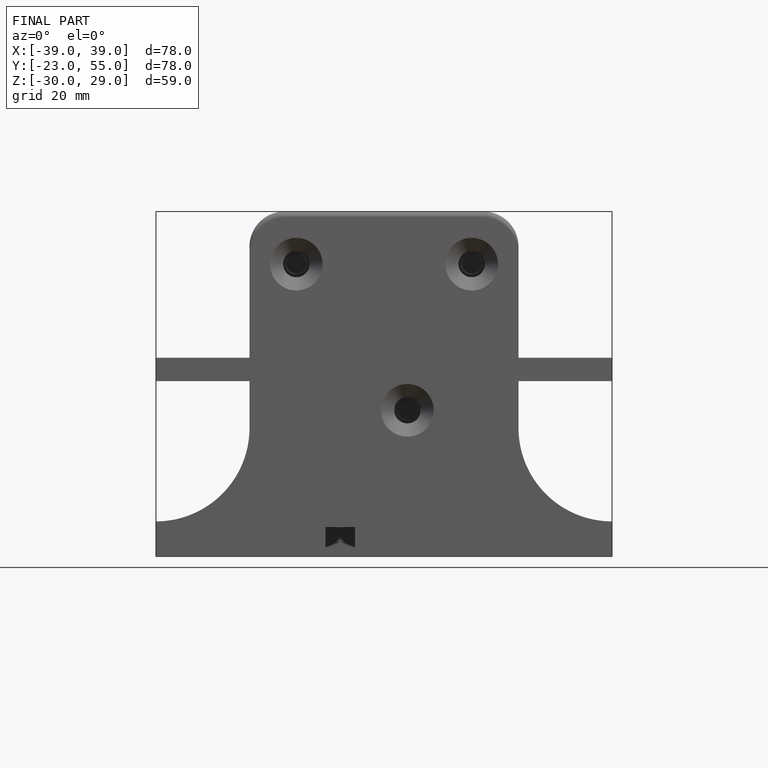
[diagram: finished part — front view with bounding-box wireframe]
